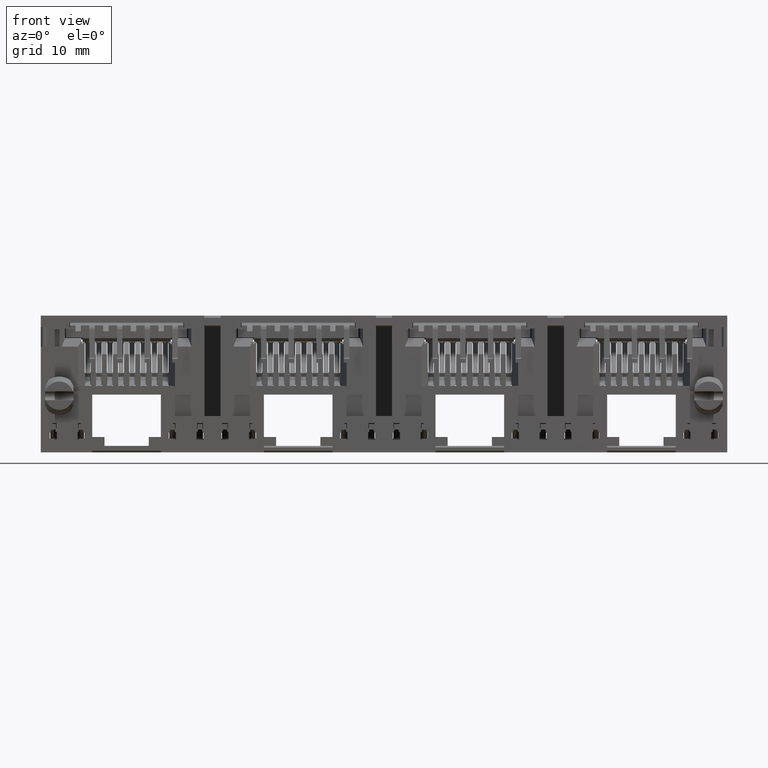
[diagram: clean part render]
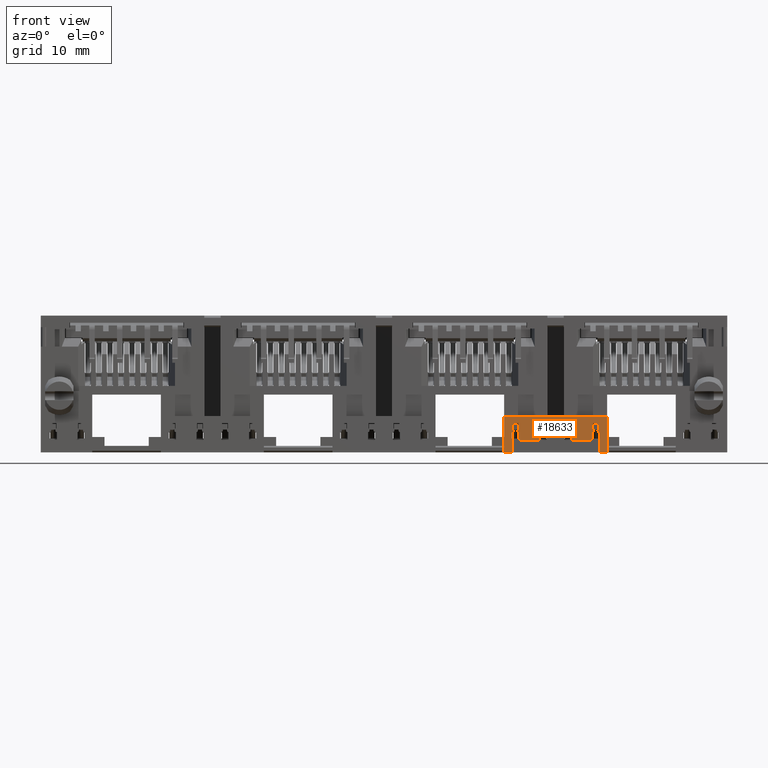
[diagram: same view with one face highlighted and labeled with its STEP entity id]
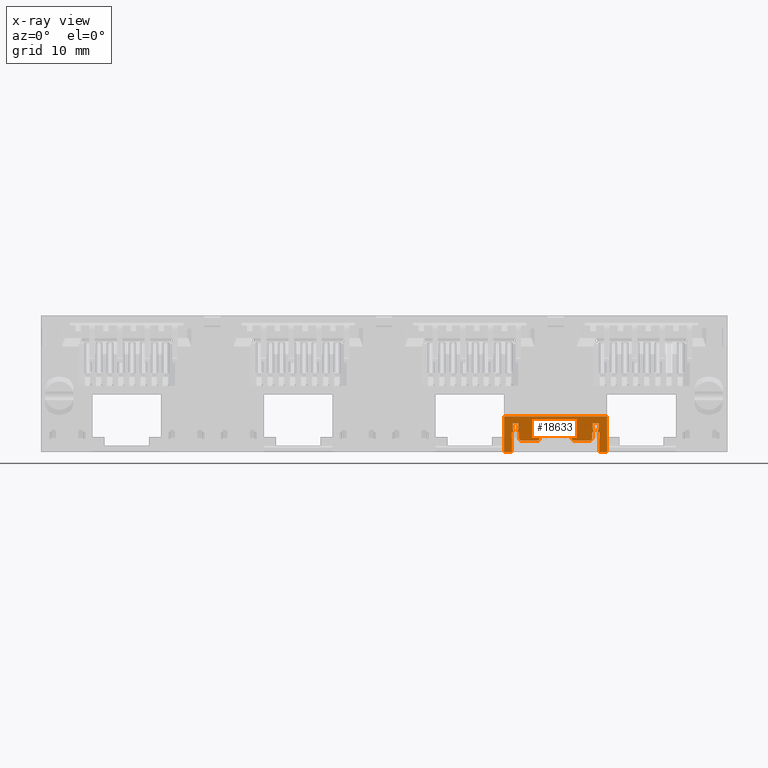
[diagram: x-ray of the same camera — body ghosted, the highlighted face saturated]
A machine part, front view. The second image highlights one B-rep face of the part: STEP entity #18633.
The next image is the same camera in x-ray: the body ghosted, the highlighted face saturated — about 0% of this face is hidden behind the body in this view.
In plain terms, the highlighted planar face has unit normal (0, 1, 0).
Its self-contained STEP definition (entity closure, byte-faithful):
#5 = CARTESIAN_POINT ( 'NONE',  ( 11.73999999999986000, -7.299999999999999800, -4.424999999999446500 ) ) ;
#51 = VERTEX_POINT ( 'NONE', #42151 ) ;
#70 = CARTESIAN_POINT ( 'NONE',  ( 14.29987121253540000, -7.299999999999998000, -4.418181119281168600 ) ) ;
#122 = B_SPLINE_CURVE_WITH_KNOTS ( 'NONE', 3,
 ( #42621, #69924, #65620, #27646 ),
 .UNSPECIFIED., .F., .F.,
 ( 4, 4 ),
 ( 0.0000000000000000000, 1.000000000000000000 ),
 .UNSPECIFIED. ) ;
#282 = CARTESIAN_POINT ( 'NONE',  ( 19.10999999999999900, -7.299999999999999800, -4.608333333333333400 ) ) ;
#555 = VERTEX_POINT ( 'NONE', #58157 ) ;
#810 = CARTESIAN_POINT ( 'NONE',  ( 19.62497640886968500, -7.300000000000000700, -4.231942493461899900 ) ) ;
#815 = CARTESIAN_POINT ( 'NONE',  ( 14.32999999999999800, -7.300000000000000700, -3.903333333333333300 ) ) ;
#946 = CARTESIAN_POINT ( 'NONE',  ( 19.70999999999999700, -7.299999999999999800, -4.080000000000000100 ) ) ;
#1155 = CARTESIAN_POINT ( 'NONE',  ( 12.25499999999999500, -7.299999999999999800, -4.230000000025500900 ) ) ;
#1161 = CARTESIAN_POINT ( 'NONE',  ( 11.80666666666666700, -7.299999999999999800, -4.080000000000000100 ) ) ;
#1225 = VERTEX_POINT ( 'NONE', #43458 ) ;
#1291 = CARTESIAN_POINT ( 'NONE',  ( 17.24155461927803800, -7.299999999999998000, -5.079397331752654800 ) ) ;
#1300 = B_SPLINE_CURVE_WITH_KNOTS ( 'NONE', 3,
 ( #66584, #40269, #51178, #61573 ),
 .UNSPECIFIED., .F., .F.,
 ( 4, 4 ),
 ( 0.0000000000000000000, 1.000000000000000000 ),
 .UNSPECIFIED. ) ;
#1408 = EDGE_CURVE ( 'NONE', #17543, #31704, #22512, .T. ) ;
#1520 = ORIENTED_EDGE ( 'NONE', *, *, #1937, .F. ) ;
#1630 = CARTESIAN_POINT ( 'NONE',  ( 12.25499999999999900, -7.300000000000000700, -4.210000000000000000 ) ) ;
#1690 = B_SPLINE_CURVE_WITH_KNOTS ( 'NONE', 3,
 ( #65242, #37693, #39855, #55962, #44590, #12850 ),
 .UNSPECIFIED., .F., .F.,
 ( 4, 2, 4 ),
 ( 0.0000000000000000000, 0.5000000000000000000, 1.000000000000000000 ),
 .UNSPECIFIED. ) ;
#1887 = CARTESIAN_POINT ( 'NONE',  ( 12.39000000000014300, -7.299999999999999800, -4.424999999999446500 ) ) ;
#1889 = EDGE_CURVE ( 'NONE', #18311, #57383, #21055, .T. ) ;
#1937 = EDGE_CURVE ( 'NONE', #66270, #32163, #36314, .T. ) ;
#2045 = ORIENTED_EDGE ( 'NONE', *, *, #24148, .F. ) ;
#2064 = ORIENTED_EDGE ( 'NONE', *, *, #48776, .F. ) ;
#2090 = DIRECTION ( 'NONE',  ( 1.000000000000000000, -0.0000000000000000000, 0.0000000000000000000 ) ) ;
#2248 = EDGE_CURVE ( 'NONE', #47143, #56397, #64339, .T. ) ;
#2477 = CARTESIAN_POINT ( 'NONE',  ( 14.35499999999999900, -7.299999999999999800, -4.169999999999999900 ) ) ;
#2508 = CARTESIAN_POINT ( 'NONE',  ( 11.02500000000000000, -7.299999999999999800, -4.049999999999999800 ) ) ;
#2717 = CARTESIAN_POINT ( 'NONE',  ( 16.70545535042160200, -7.299999999999998900, -4.252946967224617400 ) ) ;
#2721 = VERTEX_POINT ( 'NONE', #12441 ) ;
#2731 = B_SPLINE_CURVE_WITH_KNOTS ( 'NONE', 3,
 ( #34291, #33573, #1161, #39797 ),
 .UNSPECIFIED., .F., .F.,
 ( 4, 4 ),
 ( 0.0000000000000000000, 1.000000000000000000 ),
 .UNSPECIFIED. ) ;
#2791 = EDGE_CURVE ( 'NONE', #21064, #64665, #61766, .T. ) ;
#2915 = CARTESIAN_POINT ( 'NONE',  ( 14.18439733175265400, -7.299999999999998000, -5.153445380721962900 ) ) ;
#2986 = B_SPLINE_CURVE_WITH_KNOTS ( 'NONE', 3,
 ( #3451, #18864, #63149, #29731, #30638, #52012, #36110 ),
 .UNSPECIFIED., .F., .F.,
 ( 4, 1, 1, 1, 4 ),
 ( 0.0000000000000000000, 0.2500000000000000000, 0.5000000000000000000, 0.7500000000000000000, 1.000000000000000000 ),
 .UNSPECIFIED. ) ;
#3055 = CARTESIAN_POINT ( 'NONE',  ( 11.87502359113031700, -7.300000000000000700, -4.231942493461899000 ) ) ;
#3068 = CARTESIAN_POINT ( 'NONE',  ( 19.24504246644000100, -7.300000000000000700, -4.234856692046500700 ) ) ;
#3077 = CARTESIAN_POINT ( 'NONE',  ( 19.76000000000014000, -7.299999999999999800, -4.424999999999450000 ) ) ;
#3140 = CARTESIAN_POINT ( 'NONE',  ( 16.64499999999999600, -7.299999999999999800, -4.169999999999999900 ) ) ;
#3355 = CARTESIAN_POINT ( 'NONE',  ( 16.62000000000000500, -7.300000000000000700, -4.080000000000000100 ) ) ;
#3451 = CARTESIAN_POINT ( 'NONE',  ( 19.24504246644000100, -7.300000000000000700, -4.234856692046500700 ) ) ;
#3528 = CARTESIAN_POINT ( 'NONE',  ( 16.57000000000000000, -7.300000000000000700, -4.533333333333333200 ) ) ;
#3551 = CARTESIAN_POINT ( 'NONE',  ( 14.27999999999999800, -7.299999999999999800, -4.975000000000000500 ) ) ;
#3719 = CARTESIAN_POINT ( 'NONE',  ( 14.17500000000000100, -7.299999999999999800, -2.949999999999999700 ) ) ;
#4005 = CARTESIAN_POINT ( 'NONE',  ( 19.75999999999999800, -7.299999999999998900, -5.033333333333333200 ) ) ;
#4082 = EDGE_CURVE ( 'NONE', #48019, #37085, #45524, .T. ) ;
#4121 = CARTESIAN_POINT ( 'NONE',  ( 14.87999999999999700, -7.300000000000000700, -4.080000000000000100 ) ) ;
#4242 = CARTESIAN_POINT ( 'NONE',  ( 19.75999999999999800, -7.300000000000000700, -6.250000000000000000 ) ) ;
#4310 = DIRECTION ( 'NONE',  ( 1.000000000000000000, -0.0000000000000000000, 0.0000000000000000000 ) ) ;
#4400 = CARTESIAN_POINT ( 'NONE',  ( 13.58333333333333200, -7.299999999999999800, -5.174999999999999800 ) ) ;
#4426 = LINE ( 'NONE', #45999, #9503 ) ;
#4541 = B_SPLINE_CURVE_WITH_KNOTS ( 'NONE', 3,
 ( #54977, #38163, #43868, #10689 ),
 .UNSPECIFIED., .F., .F.,
 ( 4, 4 ),
 ( 0.0000000000000000000, 1.000000000000000000 ),
 .UNSPECIFIED. ) ;
#4634 = ORIENTED_EDGE ( 'NONE', *, *, #68384, .F. ) ;
#4684 = ORIENTED_EDGE ( 'NONE', *, *, #47963, .F. ) ;
#4959 = CARTESIAN_POINT ( 'NONE',  ( 19.68499999999999500, -7.299999999999999800, -4.169999999999999900 ) ) ;
#4994 = CARTESIAN_POINT ( 'NONE',  ( 14.79454464957839300, -7.299999999999998900, -4.252946967224617400 ) ) ;
#5152 = CARTESIAN_POINT ( 'NONE',  ( 17.22000000000014100, -7.300000000000000700, -4.424999999999449200 ) ) ;
#5183 = CARTESIAN_POINT ( 'NONE',  ( 14.87999999999999900, -7.300000000000000700, -3.726666666666666100 ) ) ;
#5470 = CARTESIAN_POINT ( 'NONE',  ( 11.74000000000000200, -7.299999999999999800, -5.033333333333333200 ) ) ;
#5484 = CARTESIAN_POINT ( 'NONE',  ( 17.08500000000000100, -7.300000000000000700, -4.169999999999999900 ) ) ;
#5499 = B_SPLINE_CURVE_WITH_KNOTS ( 'NONE', 3,
 ( #32097, #37333, #37555, #5152 ),
 .UNSPECIFIED., .F., .F.,
 ( 4, 4 ),
 ( 0.0000000000000000000, 1.000000000000000000 ),
 .UNSPECIFIED. ) ;
#5519 = CARTESIAN_POINT ( 'NONE',  ( 14.87999999999999700, -7.300000000000000700, -3.549999999999999400 ) ) ;
#5547 = CARTESIAN_POINT ( 'NONE',  ( 14.33767224006253100, -7.300000000000003400, -4.398536414719832700 ) ) ;
#5629 = B_SPLINE_CURVE_WITH_KNOTS ( 'NONE', 3,
 ( #68943, #69416, #36637, #9645 ),
 .UNSPECIFIED., .F., .F.,
 ( 4, 4 ),
 ( 0.0000000000000000000, 1.000000000000000000 ),
 .UNSPECIFIED. ) ;
#5774 = CARTESIAN_POINT ( 'NONE',  ( 19.18500000000000200, -7.299999999999999800, -4.169999999999999900 ) ) ;
#5841 = CARTESIAN_POINT ( 'NONE',  ( 16.62000000000000500, -7.300000000000000700, -4.080000000000000100 ) ) ;
#5886 = CARTESIAN_POINT ( 'NONE',  ( 16.64499999999999600, -7.300000000000000700, -4.080000000000000100 ) ) ;
#5893 = DIRECTION ( 'NONE',  ( -0.0000000000000000000, -0.0000000000000000000, 1.000000000000000000 ) ) ;
#6075 = VERTEX_POINT ( 'NONE', #26647 ) ;
#6338 = VECTOR ( 'NONE', #14025, 1000.000000000000000 ) ;
#6378 = ORIENTED_EDGE ( 'NONE', *, *, #40962, .F. ) ;
#6489 = EDGE_CURVE ( 'NONE', #41795, #6998, #28450, .T. ) ;
#6506 = VERTEX_POINT ( 'NONE', #5519 ) ;
#6605 = LINE ( 'NONE', #62022, #53960 ) ;
#6617 = CARTESIAN_POINT ( 'NONE',  ( 12.25438306968021600, -7.299999999999998900, -4.251162152221720400 ) ) ;
#6923 = CARTESIAN_POINT ( 'NONE',  ( 14.32999999999999500, -7.300000000000000700, -3.549999999999999400 ) ) ;
#6998 = VERTEX_POINT ( 'NONE', #8055 ) ;
#7076 = VERTEX_POINT ( 'NONE', #3068 ) ;
#7126 = CARTESIAN_POINT ( 'NONE',  ( 14.93000000000000000, -7.299999999999999800, -4.641666666666666600 ) ) ;
#7131 = B_SPLINE_CURVE_WITH_KNOTS ( 'NONE', 3,
 ( #41233, #47365, #20116, #25089 ),
 .UNSPECIFIED., .F., .F.,
 ( 4, 4 ),
 ( 0.0000000000000000000, 1.000000000000000000 ),
 .UNSPECIFIED. ) ;
#7333 = CARTESIAN_POINT ( 'NONE',  ( 19.69333333333333200, -7.299999999999999800, -4.080000000000000100 ) ) ;
#7466 = CARTESIAN_POINT ( 'NONE',  ( 16.62767224006251600, -7.300000000000004300, -4.398536414719789200 ) ) ;
#7652 = DIRECTION ( 'NONE',  ( -0.0000000000000000000, -0.0000000000000000000, 1.000000000000000000 ) ) ;
#7785 = CARTESIAN_POINT ( 'NONE',  ( 11.79000000000000300, -7.299999999999999800, -4.080000000000000100 ) ) ;
#7803 = B_SPLINE_CURVE_WITH_KNOTS ( 'NONE', 3,
 ( #13751, #24626, #36207, #52570 ),
 .UNSPECIFIED., .F., .F.,
 ( 4, 4 ),
 ( 0.0000000000000000000, 1.000000000000000000 ),
 .UNSPECIFIED. ) ;
#7819 = CARTESIAN_POINT ( 'NONE',  ( 12.38999999999999900, -7.299999999999999800, -4.791666666666667000 ) ) ;
#7845 = CARTESIAN_POINT ( 'NONE',  ( 14.87221884927902200, -7.299999999999999800, -4.398747241878513800 ) ) ;
#7924 = DIRECTION ( 'NONE',  ( 1.000000000000000000, -0.0000000000000000000, 0.0000000000000000000 ) ) ;
#8055 = CARTESIAN_POINT ( 'NONE',  ( 19.10999999999999900, -7.299999999999999800, -4.975000000000000500 ) ) ;
#8080 = CARTESIAN_POINT ( 'NONE',  ( 17.21999999999999900, -7.300000000000000700, -4.975000000000005000 ) ) ;
#8134 = CARTESIAN_POINT ( 'NONE',  ( 19.18500000000000200, -7.299999999999999800, -4.169999999999999900 ) ) ;
#8223 = CARTESIAN_POINT ( 'NONE',  ( 11.87500000000000000, -7.300000000000000700, -4.211295117878666600 ) ) ;
#8374 = CARTESIAN_POINT ( 'NONE',  ( 14.79497640886967200, -7.299999999999999800, -4.231942493462899100 ) ) ;
#8421 = CARTESIAN_POINT ( 'NONE',  ( 16.70020278292422600, -7.300000000000005200, -4.295208292058884300 ) ) ;
#8452 = ORIENTED_EDGE ( 'NONE', *, *, #24623, .F. ) ;
#8631 = ORIENTED_EDGE ( 'NONE', *, *, #43713, .F. ) ;
#8712 = CARTESIAN_POINT ( 'NONE',  ( 14.34666666666666200, -7.300000000000000700, -4.080000000000000100 ) ) ;
#8803 = CARTESIAN_POINT ( 'NONE',  ( 19.76000000000014000, -7.299999999999999800, -4.424999999999450000 ) ) ;
#8928 = CARTESIAN_POINT ( 'NONE',  ( 17.32499999999999900, -7.299999999999999800, -2.949999999999999700 ) ) ;
#8940 = CARTESIAN_POINT ( 'NONE',  ( 18.91000000000000000, -7.299999999999999800, -5.174999999999998900 ) ) ;
#8978 = CARTESIAN_POINT ( 'NONE',  ( 19.75999999999999800, -7.300000000000000700, -6.250000000000000000 ) ) ;
#9058 = ORIENTED_EDGE ( 'NONE', *, *, #42079, .F. ) ;
#9192 = VERTEX_POINT ( 'NONE', #62153 ) ;
#9288 = VERTEX_POINT ( 'NONE', #35991 ) ;
#9368 = CARTESIAN_POINT ( 'NONE',  ( 19.62500000000000000, -7.300000000000000700, -4.190647558939333300 ) ) ;
#9374 = VERTEX_POINT ( 'NONE', #69463 ) ;
#9503 = VECTOR ( 'NONE', #34592, 1000.000000000000000 ) ;
#9553 = CARTESIAN_POINT ( 'NONE',  ( 19.99833333333333500, -7.299999999999999800, -6.250000000000000000 ) ) ;
#9570 = B_SPLINE_CURVE_WITH_KNOTS ( 'NONE', 3,
 ( #35043, #7819, #67099, #1887 ),
 .UNSPECIFIED., .F., .F.,
 ( 4, 4 ),
 ( 0.0000000000000000000, 1.000000000000000000 ),
 .UNSPECIFIED. ) ;
#9645 = CARTESIAN_POINT ( 'NONE',  ( 19.70999999999999700, -7.300000000000000700, -3.549999999999999800 ) ) ;
#9664 = VECTOR ( 'NONE', #14274, 1000.000000000000000 ) ;
#9714 = VERTEX_POINT ( 'NONE', #68127 ) ;
#9806 = ORIENTED_EDGE ( 'NONE', *, *, #58314, .F. ) ;
#9838 = EDGE_CURVE ( 'NONE', #37700, #13441, #14553, .T. ) ;
#9893 = VERTEX_POINT ( 'NONE', #42691 ) ;
#9896 = CARTESIAN_POINT ( 'NONE',  ( 12.33166666666666700, -7.299999999999999800, -4.080000000000000100 ) ) ;
#9917 = ORIENTED_EDGE ( 'NONE', *, *, #34895, .F. ) ;
#9990 = CARTESIAN_POINT ( 'NONE',  ( 20.47500000000000100, -7.299999999999998900, -2.950000000000000200 ) ) ;
#10127 = VERTEX_POINT ( 'NONE', #8080 ) ;
#10138 = CARTESIAN_POINT ( 'NONE',  ( 14.41499999999999700, -7.300000000000000700, -4.169999999999999900 ) ) ;
#10246 = ORIENTED_EDGE ( 'NONE', *, *, #58971, .F. ) ;
#10505 = CARTESIAN_POINT ( 'NONE',  ( 19.16000000000000000, -7.299999999999999800, -4.080000000000000100 ) ) ;
#10546 = CARTESIAN_POINT ( 'NONE',  ( 16.70500000000000200, -7.300000000000000700, -4.169999999999999900 ) ) ;
#10689 = CARTESIAN_POINT ( 'NONE',  ( 11.79000000000000300, -7.300000000000000700, -3.549999999999999800 ) ) ;
#10696 = VECTOR ( 'NONE', #32886, 1000.000000000000000 ) ;
#10992 = VERTEX_POINT ( 'NONE', #40656 ) ;
#11001 = ORIENTED_EDGE ( 'NONE', *, *, #19203, .F. ) ;
#11533 = CARTESIAN_POINT ( 'NONE',  ( 17.08438306968021400, -7.299999999999998900, -4.251162152221720400 ) ) ;
#11956 = CARTESIAN_POINT ( 'NONE',  ( 19.65848257997322800, -7.299999999999992700, -4.352265387897631400 ) ) ;
#11977 = VERTEX_POINT ( 'NONE', #24419 ) ;
#12056 = CARTESIAN_POINT ( 'NONE',  ( 17.15333333333333600, -7.300000000000000700, -4.080000000000000100 ) ) ;
#12094 = CARTESIAN_POINT ( 'NONE',  ( 19.68499999999999500, -7.299999999999999800, -4.080000000000000100 ) ) ;
#12179 = CARTESIAN_POINT ( 'NONE',  ( 18.41333333333333400, -7.299999999999999800, -5.174999999999999800 ) ) ;
#12321 = CARTESIAN_POINT ( 'NONE',  ( 19.18500000000000200, -7.299999999999999800, -4.169999999999999900 ) ) ;
#12360 = FACE_OUTER_BOUND ( 'NONE', #47078, .T. ) ;
#12441 = CARTESIAN_POINT ( 'NONE',  ( 16.62000000000000500, -7.300000000000000700, -3.550000000000000300 ) ) ;
#12468 = CARTESIAN_POINT ( 'NONE',  ( 17.14500000000000000, -7.299999999999999800, -4.169999999999999900 ) ) ;
#12561 = ORIENTED_EDGE ( 'NONE', *, *, #63087, .F. ) ;
#12850 = CARTESIAN_POINT ( 'NONE',  ( 12.39000000000000100, -7.299999999999999800, -4.975000000000001400 ) ) ;
#12886 = EDGE_CURVE ( 'NONE', #66041, #62112, #17112, .T. ) ;
#12965 = ORIENTED_EDGE ( 'NONE', *, *, #55295, .T. ) ;
#13100 = EDGE_CURVE ( 'NONE', #10992, #15124, #61375, .T. ) ;
#13193 = ORIENTED_EDGE ( 'NONE', *, *, #36907, .F. ) ;
#13441 = VERTEX_POINT ( 'NONE', #54051 ) ;
#13749 = VECTOR ( 'NONE', #4310, 1000.000000000000000 ) ;
#13751 = CARTESIAN_POINT ( 'NONE',  ( 17.17000000000000200, -7.300000000000000700, -4.080000000000000100 ) ) ;
#14025 = DIRECTION ( 'NONE',  ( -0.0000000000000000000, -0.0000000000000000000, -1.000000000000000000 ) ) ;
#14131 = ORIENTED_EDGE ( 'NONE', *, *, #21765, .F. ) ;
#14218 = EDGE_CURVE ( 'NONE', #42968, #51, #42675, .T. ) ;
#14274 = DIRECTION ( 'NONE',  ( 1.000000000000000000, -0.0000000000000000000, 0.0000000000000000000 ) ) ;
#14402 = CARTESIAN_POINT ( 'NONE',  ( 11.81500000000000000, -7.299999999999999800, -4.080000000000000100 ) ) ;
#14553 = B_SPLINE_CURVE_WITH_KNOTS ( 'NONE', 3,
 ( #52662, #63589, #26314, #4121 ),
 .UNSPECIFIED., .F., .F.,
 ( 4, 4 ),
 ( 0.0000000000000000000, 1.000000000000000000 ),
 .UNSPECIFIED. ) ;
#14636 = CARTESIAN_POINT ( 'NONE',  ( 12.34000000000000000, -7.300000000000000700, -3.549999999999999800 ) ) ;
#14790 = LINE ( 'NONE', #3140, #9664 ) ;
#14940 = CARTESIAN_POINT ( 'NONE',  ( 14.85499999999999700, -7.300000000000000700, -4.080000000000000100 ) ) ;
#14968 = CARTESIAN_POINT ( 'NONE',  ( 11.26333333333333700, -7.299999999999999800, -6.250000000000000000 ) ) ;
#14992 = CARTESIAN_POINT ( 'NONE',  ( 11.73999999999986000, -7.299999999999999800, -4.424999999999446500 ) ) ;
#15020 = B_SPLINE_CURVE_WITH_KNOTS ( 'NONE', 3,
 ( #40323, #61875, #7845, #52401, #19930, #4994, #43125 ),
 .UNSPECIFIED., .F., .F.,
 ( 4, 1, 1, 1, 4 ),
 ( 0.0000000000000000000, 0.2500000000000000000, 0.5000000000000000000, 0.7500000000000000000, 1.000000000000000000 ),
 .UNSPECIFIED. ) ;
#15022 = EDGE_CURVE ( 'NONE', #18322, #53710, #43169, .T. ) ;
#15124 = VERTEX_POINT ( 'NONE', #41217 ) ;
#15198 = B_SPLINE_CURVE_WITH_KNOTS ( 'NONE', 3,
 ( #42047, #9553, #49560, #32216 ),
 .UNSPECIFIED., .F., .F.,
 ( 4, 4 ),
 ( 0.0000000000000000000, 1.000000000000000000 ),
 .UNSPECIFIED. ) ;
#15210 = CARTESIAN_POINT ( 'NONE',  ( 11.74000000000000200, -7.299999999999998900, -6.250000000000000000 ) ) ;
#15288 = CARTESIAN_POINT ( 'NONE',  ( 19.62500000000000000, -7.300000000000000700, -4.211295117878666600 ) ) ;
#15551 = VERTEX_POINT ( 'NONE', #21080 ) ;
#15564 = CARTESIAN_POINT ( 'NONE',  ( 16.62000000000000500, -7.300000000000001600, -3.903333333333333800 ) ) ;
#15631 = CARTESIAN_POINT ( 'NONE',  ( 14.27999999999985700, -7.300000000000000700, -4.424999999999446500 ) ) ;
#15706 = ORIENTED_EDGE ( 'NONE', *, *, #16557, .F. ) ;
#15730 = CARTESIAN_POINT ( 'NONE',  ( 19.10999999999999900, -7.299999999999999800, -4.791666666666667000 ) ) ;
#16557 = EDGE_CURVE ( 'NONE', #57383, #37700, #41342, .T. ) ;
#16768 = VERTEX_POINT ( 'NONE', #67030 ) ;
#16935 = VERTEX_POINT ( 'NONE', #10505 ) ;
#16989 = B_SPLINE_CURVE_WITH_KNOTS ( 'NONE', 3,
 ( #57220, #18654, #8223, #34733 ),
 .UNSPECIFIED., .F., .F.,
 ( 4, 4 ),
 ( 0.0000000000000000000, 1.000000000000000000 ),
 .UNSPECIFIED. ) ;
#17047 = DIRECTION ( 'NONE',  ( 1.000000000000000000, -0.0000000000000000000, 0.0000000000000000000 ) ) ;
#17062 = ORIENTED_EDGE ( 'NONE', *, *, #66042, .F. ) ;
#17112 = B_SPLINE_CURVE_WITH_KNOTS ( 'NONE', 3,
 ( #24627, #57086, #68269, #3551 ),
 .UNSPECIFIED., .F., .F.,
 ( 4, 4 ),
 ( 0.0000000000000000000, 1.000000000000000000 ),
 .UNSPECIFIED. ) ;
#17174 = CARTESIAN_POINT ( 'NONE',  ( 19.63004402688731900, -7.300000000000001600, -4.295197145607587300 ) ) ;
#17217 = CARTESIAN_POINT ( 'NONE',  ( 17.19997506609420100, -7.299999999999998900, -4.418128369219411800 ) ) ;
#17411 = B_SPLINE_CURVE_WITH_KNOTS ( 'NONE', 3,
 ( #37467, #70021, #15564, #5841 ),
 .UNSPECIFIED., .F., .F.,
 ( 4, 4 ),
 ( 0.0000000000000000000, 1.000000000000000000 ),
 .UNSPECIFIED. ) ;
#17481 = CARTESIAN_POINT ( 'NONE',  ( 14.85499999999999700, -7.299999999999999800, -4.169999999999999900 ) ) ;
#17532 = CARTESIAN_POINT ( 'NONE',  ( 12.39000000000014300, -7.299999999999999800, -4.424999999999446500 ) ) ;
#17543 = VERTEX_POINT ( 'NONE', #50627 ) ;
#17761 = CARTESIAN_POINT ( 'NONE',  ( 19.24499999999999700, -7.300000000000000700, -4.191295117879000100 ) ) ;
#17790 = CARTESIAN_POINT ( 'NONE',  ( 14.87999999999999700, -7.300000000000000700, -3.549999999999999400 ) ) ;
#17976 = CARTESIAN_POINT ( 'NONE',  ( 12.25955416835693200, -7.299999999999992700, -4.293796047258625000 ) ) ;
#18067 = ORIENTED_EDGE ( 'NONE', *, *, #51803, .F. ) ;
#18125 = PLANE ( 'NONE',  #38037 ) ;
#18311 = VERTEX_POINT ( 'NONE', #26197 ) ;
#18322 = VERTEX_POINT ( 'NONE', #37090 ) ;
#18445 = VERTEX_POINT ( 'NONE', #10546 ) ;
#18503 = CARTESIAN_POINT ( 'NONE',  ( 17.17000000000000200, -7.300000000000000700, -3.550000000000000300 ) ) ;
#18564 = B_SPLINE_CURVE_WITH_KNOTS ( 'NONE', 3,
 ( #67052, #23859, #8712, #52058 ),
 .UNSPECIFIED., .F., .F.,
 ( 4, 4 ),
 ( 0.0000000000000000000, 1.000000000000000000 ),
 .UNSPECIFIED. ) ;
#18623 = CARTESIAN_POINT ( 'NONE',  ( 20.66399999999999800, -7.299999999999999800, -2.869440653744999500 ) ) ;
#18633 = ADVANCED_FACE ( 'NONE', ( #12360 ), #18125, .F. ) ;
#18654 = CARTESIAN_POINT ( 'NONE',  ( 11.87500000000000000, -7.300000000000000700, -4.190647558939333300 ) ) ;
#18765 = CARTESIAN_POINT ( 'NONE',  ( 11.81500000000000000, -7.299999999999999800, -3.669999999999999900 ) ) ;
#18778 = EDGE_CURVE ( 'NONE', #70346, #47143, #21283, .T. ) ;
#18804 = CARTESIAN_POINT ( 'NONE',  ( 14.79500000000000000, -7.300000000000000700, -4.211295117879333600 ) ) ;
#18864 = CARTESIAN_POINT ( 'NONE',  ( 19.24508493287999800, -7.299999999999998900, -4.256511655712047000 ) ) ;
#19203 = EDGE_CURVE ( 'NONE', #6075, #53752, #26517, .T. ) ;
#19314 = CARTESIAN_POINT ( 'NONE',  ( 16.67152546253525400, -7.299999999999991800, -4.352241286328917300 ) ) ;
#19367 = VERTEX_POINT ( 'NONE', #58507 ) ;
#19495 = CARTESIAN_POINT ( 'NONE',  ( 14.28000000000000100, -7.299999999999998900, -5.027359877559830700 ) ) ;
#19665 = VERTEX_POINT ( 'NONE', #29545 ) ;
#19930 = CARTESIAN_POINT ( 'NONE',  ( 14.80004402688758200, -7.299999999999999800, -4.295197145608298700 ) ) ;
#20116 = CARTESIAN_POINT ( 'NONE',  ( 19.17666666666666900, -7.299999999999999800, -4.080000000000000100 ) ) ;
#20480 = EDGE_CURVE ( 'NONE', #2721, #32973, #17411, .T. ) ;
#20486 = ORIENTED_EDGE ( 'NONE', *, *, #36728, .F. ) ;
#20839 = VERTEX_POINT ( 'NONE', #35229 ) ;
#20940 = B_SPLINE_CURVE_WITH_KNOTS ( 'NONE', 3,
 ( #70383, #64653, #5183, #58952 ),
 .UNSPECIFIED., .F., .F.,
 ( 4, 4 ),
 ( 0.0000000000000000000, 1.000000000000000000 ),
 .UNSPECIFIED. ) ;
#20974 = CARTESIAN_POINT ( 'NONE',  ( 19.10999999999986100, -7.299999999999999800, -4.424999999999447400 ) ) ;
#21055 = LINE ( 'NONE', #46018, #41453 ) ;
#21064 = VERTEX_POINT ( 'NONE', #64360 ) ;
#21080 = CARTESIAN_POINT ( 'NONE',  ( 14.32999999999999500, -7.300000000000000700, -4.080000000000000100 ) ) ;
#21283 = B_SPLINE_CURVE_WITH_KNOTS ( 'NONE', 3,
 ( #57677, #47009, #64292, #37233 ),
 .UNSPECIFIED., .F., .F.,
 ( 4, 4 ),
 ( 0.0000000000000000000, 1.000000000000000000 ),
 .UNSPECIFIED. ) ;
#21343 = CARTESIAN_POINT ( 'NONE',  ( 11.02500000000000000, -7.299999999999998900, -2.949999999999999700 ) ) ;
#21765 = EDGE_CURVE ( 'NONE', #9288, #67861, #33380, .T. ) ;
#21881 = CARTESIAN_POINT ( 'NONE',  ( 11.79000000000000300, -7.300000000000000700, -3.549999999999999800 ) ) ;
#22042 = LINE ( 'NONE', #4959, #62842 ) ;
#22074 = CARTESIAN_POINT ( 'NONE',  ( 13.08666666666666400, -7.300000000000000700, -5.174999999999999800 ) ) ;
#22312 = ORIENTED_EDGE ( 'NONE', *, *, #68274, .F. ) ;
#22329 = CARTESIAN_POINT ( 'NONE',  ( 14.32999999999999500, -7.300000000000000700, -4.080000000000000100 ) ) ;
#22351 = CARTESIAN_POINT ( 'NONE',  ( 17.22000000000000200, -7.299999999999998900, -5.027359877559828900 ) ) ;
#22359 = VERTEX_POINT ( 'NONE', #14636 ) ;
#22374 = ORIENTED_EDGE ( 'NONE', *, *, #40490, .F. ) ;
#22512 = B_SPLINE_CURVE_WITH_KNOTS ( 'NONE', 3,
 ( #60729, #12179, #28245, #54820 ),
 .UNSPECIFIED., .F., .F.,
 ( 4, 4 ),
 ( 0.0000000000000000000, 1.000000000000000000 ),
 .UNSPECIFIED. ) ;
#22834 = VERTEX_POINT ( 'NONE', #27205 ) ;
#22842 = CARTESIAN_POINT ( 'NONE',  ( 17.16178123953667600, -7.299999999999999800, -4.398504272840308500 ) ) ;
#23096 = ORIENTED_EDGE ( 'NONE', *, *, #45668, .F. ) ;
#23205 = EDGE_CURVE ( 'NONE', #41183, #37394, #54701, .T. ) ;
#23330 = ORIENTED_EDGE ( 'NONE', *, *, #14218, .F. ) ;
#23423 = CARTESIAN_POINT ( 'NONE',  ( 14.51333333333333000, -7.300000000000000700, -3.549999999999999800 ) ) ;
#23505 = CARTESIAN_POINT ( 'NONE',  ( 14.79500000000000000, -7.300000000000000700, -4.190647558939666300 ) ) ;
#23634 = CARTESIAN_POINT ( 'NONE',  ( 19.24499999999999700, -7.300000000000000700, -4.212590235757999400 ) ) ;
#23784 = EDGE_CURVE ( 'NONE', #16768, #66041, #50812, .T. ) ;
#23859 = CARTESIAN_POINT ( 'NONE',  ( 14.33833333333332900, -7.300000000000000700, -4.080000000000000100 ) ) ;
#24148 = EDGE_CURVE ( 'NONE', #62286, #19367, #52683, .T. ) ;
#24400 = CARTESIAN_POINT ( 'NONE',  ( 17.14500000000000000, -7.299999999999999800, -4.169999999999999900 ) ) ;
#24419 = CARTESIAN_POINT ( 'NONE',  ( 11.79000000000000300, -7.299999999999999800, -4.080000000000000100 ) ) ;
#24443 = CARTESIAN_POINT ( 'NONE',  ( 19.18500000000000200, -7.299999999999999800, -3.669999999999999900 ) ) ;
#24583 = CARTESIAN_POINT ( 'NONE',  ( 19.10999999999999900, -7.299999999999998900, -5.027359877559829800 ) ) ;
#24623 = EDGE_CURVE ( 'NONE', #555, #58456, #34210, .T. ) ;
#24626 = CARTESIAN_POINT ( 'NONE',  ( 17.17000000000000200, -7.300000000000000700, -3.903333333333333800 ) ) ;
#24627 = CARTESIAN_POINT ( 'NONE',  ( 14.27999999999985700, -7.300000000000000700, -4.424999999999446500 ) ) ;
#25089 = CARTESIAN_POINT ( 'NONE',  ( 19.18500000000000200, -7.299999999999999800, -4.080000000000000100 ) ) ;
#25090 = CARTESIAN_POINT ( 'NONE',  ( 19.62500000000000000, -7.300000000000000700, -4.169999999999999900 ) ) ;
#25105 = EDGE_CURVE ( 'NONE', #19665, #54769, #29899, .T. ) ;
#25144 = ORIENTED_EDGE ( 'NONE', *, *, #2791, .F. ) ;
#25233 = CARTESIAN_POINT ( 'NONE',  ( 11.02500000000000400, -7.299999999999998900, -6.250000000000000000 ) ) ;
#25331 = CARTESIAN_POINT ( 'NONE',  ( 12.32333333333333100, -7.299999999999999800, -4.080000000000000100 ) ) ;
#25497 = VERTEX_POINT ( 'NONE', #52050 ) ;
#25571 = CARTESIAN_POINT ( 'NONE',  ( 14.41499999999999700, -7.300000000000000700, -4.169999999999999900 ) ) ;
#25682 = ORIENTED_EDGE ( 'NONE', *, *, #34989, .F. ) ;
#25857 = CARTESIAN_POINT ( 'NONE',  ( 20.47500000000000100, -7.299999999999999800, -4.050000000000000700 ) ) ;
#25864 = B_SPLINE_CURVE_WITH_KNOTS ( 'NONE', 3,
 ( #29795, #29315, #56828, #7785 ),
 .UNSPECIFIED., .F., .F.,
 ( 4, 4 ),
 ( 0.0000000000000000000, 1.000000000000000000 ),
 .UNSPECIFIED. ) ;
#26066 = CARTESIAN_POINT ( 'NONE',  ( 11.50166666666666900, -7.299999999999999800, -6.250000000000000000 ) ) ;
#26081 = ORIENTED_EDGE ( 'NONE', *, *, #52001, .F. ) ;
#26197 = CARTESIAN_POINT ( 'NONE',  ( 14.79500000000000000, -7.300000000000000700, -4.169999999999999900 ) ) ;
#26314 = CARTESIAN_POINT ( 'NONE',  ( 14.87166666666666400, -7.300000000000000700, -4.080000000000000100 ) ) ;
#26317 = ORIENTED_EDGE ( 'NONE', *, *, #27788, .F. ) ;
#26322 = ORIENTED_EDGE ( 'NONE', *, *, #59325, .F. ) ;
#26517 = B_SPLINE_CURVE_WITH_KNOTS ( 'NONE', 3,
 ( #34846, #40586, #35317, #45299 ),
 .UNSPECIFIED., .F., .F.,
 ( 4, 4 ),
 ( 0.0000000000000000000, 1.000000000000000000 ),
 .UNSPECIFIED. ) ;
#26536 = CARTESIAN_POINT ( 'NONE',  ( 11.74000000000000200, -7.299999999999998900, -6.250000000000000000 ) ) ;
#26647 = CARTESIAN_POINT ( 'NONE',  ( 19.70999999999999700, -7.300000000000000700, -3.549999999999999800 ) ) ;
#26890 = CARTESIAN_POINT ( 'NONE',  ( 14.07999999999999800, -7.299999999999999800, -5.174999999999999800 ) ) ;
#27205 = CARTESIAN_POINT ( 'NONE',  ( 12.31499999999999600, -7.299999999999999800, -4.169999999999999900 ) ) ;
#27547 = ORIENTED_EDGE ( 'NONE', *, *, #18778, .F. ) ;
#27635 = CARTESIAN_POINT ( 'NONE',  ( 16.62833333333333700, -7.300000000000001600, -4.080000000000000100 ) ) ;
#27646 = CARTESIAN_POINT ( 'NONE',  ( 16.70502359113032400, -7.300000000000000700, -4.231942493462899100 ) ) ;
#27721 = ORIENTED_EDGE ( 'NONE', *, *, #20480, .F. ) ;
#27788 = EDGE_CURVE ( 'NONE', #32973, #29643, #57190, .T. ) ;
#27791 = CARTESIAN_POINT ( 'NONE',  ( 19.76000000000014000, -7.299999999999999800, -4.424999999999450000 ) ) ;
#27844 = B_SPLINE_CURVE_WITH_KNOTS ( 'NONE', 3,
 ( #54471, #65408, #32871, #38344 ),
 .UNSPECIFIED., .F., .F.,
 ( 4, 4 ),
 ( 0.0000000000000000000, 1.000000000000000000 ),
 .UNSPECIFIED. ) ;
#28101 = CARTESIAN_POINT ( 'NONE',  ( 14.35499999999999900, -7.300000000000000700, -4.080000000000000100 ) ) ;
#28245 = CARTESIAN_POINT ( 'NONE',  ( 17.91666666666666800, -7.299999999999999800, -5.174999999999999800 ) ) ;
#28450 = B_SPLINE_CURVE_WITH_KNOTS ( 'NONE', 3,
 ( #32698, #282, #15730, #43422 ),
 .UNSPECIFIED., .F., .F.,
 ( 4, 4 ),
 ( 0.0000000000000000000, 1.000000000000000000 ),
 .UNSPECIFIED. ) ;
#28480 = CARTESIAN_POINT ( 'NONE',  ( 11.81500000000000000, -7.299999999999999800, -4.169999999999999900 ) ) ;
#28850 = CARTESIAN_POINT ( 'NONE',  ( 12.36997506609420000, -7.299999999999998900, -4.418128369219409100 ) ) ;
#29068 = ORIENTED_EDGE ( 'NONE', *, *, #37869, .F. ) ;
#29315 = CARTESIAN_POINT ( 'NONE',  ( 11.79000000000000300, -7.300000000000000700, -3.726666666666666600 ) ) ;
#29432 = CARTESIAN_POINT ( 'NONE',  ( 19.24499999999999700, -7.300000000000000700, -4.169999999999999900 ) ) ;
#29545 = CARTESIAN_POINT ( 'NONE',  ( 11.02500000000000400, -7.299999999999998900, -6.250000000000000000 ) ) ;
#29643 = VERTEX_POINT ( 'NONE', #68916 ) ;
#29731 = CARTESIAN_POINT ( 'NONE',  ( 19.21031331952241700, -7.299999999999990100, -4.353800758305605500 ) ) ;
#29779 = DIRECTION ( 'NONE',  ( 1.000000000000000000, -0.0000000000000000000, 0.0000000000000000000 ) ) ;
#29795 = CARTESIAN_POINT ( 'NONE',  ( 11.79000000000000300, -7.300000000000000700, -3.549999999999999800 ) ) ;
#29813 = CARTESIAN_POINT ( 'NONE',  ( 16.57000000000000000, -7.299999999999999800, -4.750000000000000000 ) ) ;
#29899 = B_SPLINE_CURVE_WITH_KNOTS ( 'NONE', 3,
 ( #37174, #14968, #26066, #15210 ),
 .UNSPECIFIED., .F., .F.,
 ( 4, 4 ),
 ( 0.0000000000000000000, 1.000000000000000000 ),
 .UNSPECIFIED. ) ;
#30016 = CARTESIAN_POINT ( 'NONE',  ( 19.08844538072196800, -7.299999999999999800, -5.079397331752656600 ) ) ;
#30204 = B_SPLINE_CURVE_WITH_KNOTS ( 'NONE', 3,
 ( #66582, #17761, #23634, #55650 ),
 .UNSPECIFIED., .F., .F.,
 ( 4, 4 ),
 ( 0.0000000000000000000, 1.000000000000000000 ),
 .UNSPECIFIED. ) ;
#30218 = LINE ( 'NONE', #12321, #10696 ) ;
#30262 = LINE ( 'NONE', #62120, #42117 ) ;
#30300 = ORIENTED_EDGE ( 'NONE', *, *, #63688, .F. ) ;
#30356 = CARTESIAN_POINT ( 'NONE',  ( 14.13235987755983000, -7.299999999999998900, -5.175000000000001600 ) ) ;
#30638 = CARTESIAN_POINT ( 'NONE',  ( 19.16680097832797700, -7.300000000000008700, -4.399027914198790700 ) ) ;
#30734 = VERTEX_POINT ( 'NONE', #29432 ) ;
#30738 = EDGE_CURVE ( 'NONE', #62112, #42968, #68496, .T. ) ;
#31201 = EDGE_CURVE ( 'NONE', #45326, #30734, #30218, .T. ) ;
#31288 = VERTEX_POINT ( 'NONE', #62066 ) ;
#31472 = CARTESIAN_POINT ( 'NONE',  ( 11.87502359113031700, -7.300000000000000700, -4.231942493461899000 ) ) ;
#31704 = VERTEX_POINT ( 'NONE', #62240 ) ;
#31768 = CARTESIAN_POINT ( 'NONE',  ( 16.57000000000000000, -7.299999999999999800, -4.750000000000000000 ) ) ;
#32097 = CARTESIAN_POINT ( 'NONE',  ( 17.21999999999999900, -7.300000000000000700, -4.975000000000005000 ) ) ;
#32163 = VERTEX_POINT ( 'NONE', #28480 ) ;
#32216 = CARTESIAN_POINT ( 'NONE',  ( 20.47500000000000100, -7.300000000000000700, -6.250000000000000000 ) ) ;
#32347 = CARTESIAN_POINT ( 'NONE',  ( 12.34000000000000000, -7.299999999999999800, -4.080000000000000100 ) ) ;
#32604 = CARTESIAN_POINT ( 'NONE',  ( 14.79497640886967200, -7.299999999999999800, -4.231942493462899100 ) ) ;
#32698 = CARTESIAN_POINT ( 'NONE',  ( 19.10999999999986100, -7.299999999999999800, -4.424999999999447400 ) ) ;
#32795 = CARTESIAN_POINT ( 'NONE',  ( 17.22000000000014100, -7.300000000000000700, -4.424999999999449200 ) ) ;
#32871 = CARTESIAN_POINT ( 'NONE',  ( 12.34000000000000000, -7.300000000000000700, -3.726666666666666600 ) ) ;
#32886 = DIRECTION ( 'NONE',  ( 1.000000000000000000, -0.0000000000000000000, 0.0000000000000000000 ) ) ;
#32973 = VERTEX_POINT ( 'NONE', #3355 ) ;
#33203 = CARTESIAN_POINT ( 'NONE',  ( 19.70221884927882200, -7.300000000000003400, -4.398747241878369100 ) ) ;
#33380 = B_SPLINE_CURVE_WITH_KNOTS ( 'NONE', 3,
 ( #51224, #7126, #56649, #45282 ),
 .UNSPECIFIED., .F., .F.,
 ( 4, 4 ),
 ( 0.0000000000000000000, 1.000000000000000000 ),
 .UNSPECIFIED. ) ;
#33573 = CARTESIAN_POINT ( 'NONE',  ( 11.79833333333333400, -7.299999999999999800, -4.080000000000000100 ) ) ;
#33911 = ORIENTED_EDGE ( 'NONE', *, *, #6489, .F. ) ;
#34210 = B_SPLINE_CURVE_WITH_KNOTS ( 'NONE', 3,
 ( #35257, #3528, #46198, #29813 ),
 .UNSPECIFIED., .F., .F.,
 ( 4, 4 ),
 ( 0.0000000000000000000, 1.000000000000000000 ),
 .UNSPECIFIED. ) ;
#34291 = CARTESIAN_POINT ( 'NONE',  ( 11.79000000000000300, -7.299999999999999800, -4.080000000000000100 ) ) ;
#34423 = ORIENTED_EDGE ( 'NONE', *, *, #23784, .F. ) ;
#34592 = DIRECTION ( 'NONE',  ( -6.938893903907228400E-015, -0.0000000000000000000, -1.000000000000000000 ) ) ;
#34733 = CARTESIAN_POINT ( 'NONE',  ( 11.87502359113031700, -7.300000000000000700, -4.231942493461899000 ) ) ;
#34846 = CARTESIAN_POINT ( 'NONE',  ( 19.70999999999999700, -7.300000000000000700, -3.549999999999999800 ) ) ;
#34895 = EDGE_CURVE ( 'NONE', #30734, #7076, #30204, .T. ) ;
#34989 = EDGE_CURVE ( 'NONE', #44929, #11977, #25864, .T. ) ;
#35036 = VERTEX_POINT ( 'NONE', #46847 ) ;
#35043 = CARTESIAN_POINT ( 'NONE',  ( 12.39000000000000100, -7.299999999999999800, -4.975000000000001400 ) ) ;
#35102 = CARTESIAN_POINT ( 'NONE',  ( 12.31499999999999600, -7.299999999999999800, -4.169999999999999900 ) ) ;
#35229 = CARTESIAN_POINT ( 'NONE',  ( 12.25499999999999900, -7.300000000000000700, -4.169999999999999900 ) ) ;
#35234 = CARTESIAN_POINT ( 'NONE',  ( 19.01439733175265100, -7.299999999999998000, -5.153445380721962000 ) ) ;
#35257 = CARTESIAN_POINT ( 'NONE',  ( 16.56999999999985800, -7.299999999999999800, -4.424999999999446500 ) ) ;
#35317 = CARTESIAN_POINT ( 'NONE',  ( 19.34333333333333400, -7.300000000000000700, -3.549999999999999800 ) ) ;
#35389 = CARTESIAN_POINT ( 'NONE',  ( 16.56999999999985800, -7.299999999999999800, -4.424999999999446500 ) ) ;
#35492 = CARTESIAN_POINT ( 'NONE',  ( 11.84152546253557300, -7.300000000000001600, -4.352241286328517600 ) ) ;
#35508 = ORIENTED_EDGE ( 'NONE', *, *, #30738, .F. ) ;
#35528 = VERTEX_POINT ( 'NONE', #40546 ) ;
#35565 = DIRECTION ( 'NONE',  ( 3.469446951953614200E-015, -0.0000000000000000000, -1.000000000000000000 ) ) ;
#35600 = VERTEX_POINT ( 'NONE', #4242 ) ;
#35677 = ORIENTED_EDGE ( 'NONE', *, *, #25105, .T. ) ;
#35689 = ORIENTED_EDGE ( 'NONE', *, *, #47967, .F. ) ;
#35938 = CARTESIAN_POINT ( 'NONE',  ( 11.87020278292442300, -7.300000000000002500, -4.295208292058152500 ) ) ;
#35985 = VERTEX_POINT ( 'NONE', #39962 ) ;
#35991 = CARTESIAN_POINT ( 'NONE',  ( 14.93000000000000000, -7.299999999999998900, -4.750000000000000000 ) ) ;
#36110 = CARTESIAN_POINT ( 'NONE',  ( 19.10999999999986100, -7.299999999999999800, -4.424999999999447400 ) ) ;
#36206 = CARTESIAN_POINT ( 'NONE',  ( 19.75999999999999800, -7.299999999999998900, -5.641666666666667500 ) ) ;
#36207 = CARTESIAN_POINT ( 'NONE',  ( 17.17000000000000200, -7.300000000000000700, -3.726666666666667500 ) ) ;
#36260 = CARTESIAN_POINT ( 'NONE',  ( 19.70999999999999700, -7.299999999999999800, -4.080000000000000100 ) ) ;
#36314 = LINE ( 'NONE', #18765, #37168 ) ;
#36418 = CARTESIAN_POINT ( 'NONE',  ( 11.75987121253548500, -7.299999999999998900, -4.418181119281142000 ) ) ;
#36637 = CARTESIAN_POINT ( 'NONE',  ( 19.70999999999999700, -7.300000000000000700, -3.726666666666666600 ) ) ;
#36728 = EDGE_CURVE ( 'NONE', #22359, #44929, #4541, .T. ) ;
#36907 = EDGE_CURVE ( 'NONE', #29643, #9374, #4426, .T. ) ;
#37085 = VERTEX_POINT ( 'NONE', #42166 ) ;
#37090 = CARTESIAN_POINT ( 'NONE',  ( 19.68499999999999500, -7.299999999999999800, -4.080000000000000100 ) ) ;
#37115 = ORIENTED_EDGE ( 'NONE', *, *, #52772, .F. ) ;
#37168 = VECTOR ( 'NONE', #57594, 1000.000000000000000 ) ;
#37174 = CARTESIAN_POINT ( 'NONE',  ( 11.02500000000000400, -7.299999999999998900, -6.250000000000000000 ) ) ;
#37233 = CARTESIAN_POINT ( 'NONE',  ( 17.08500000000000100, -7.300000000000000700, -4.169999999999999900 ) ) ;
#37333 = CARTESIAN_POINT ( 'NONE',  ( 17.22000000000000200, -7.299999999999999800, -4.791666666666667000 ) ) ;
#37394 = VERTEX_POINT ( 'NONE', #14992 ) ;
#37398 = VERTEX_POINT ( 'NONE', #57403 ) ;
#37467 = CARTESIAN_POINT ( 'NONE',  ( 16.62000000000000500, -7.300000000000000700, -3.550000000000000300 ) ) ;
#37555 = CARTESIAN_POINT ( 'NONE',  ( 17.22000000000000200, -7.300000000000000700, -4.608333333333333400 ) ) ;
#37693 = CARTESIAN_POINT ( 'NONE',  ( 12.53764012244016800, -7.299999999999998900, -5.174999999999998000 ) ) ;
#37700 = VERTEX_POINT ( 'NONE', #14940 ) ;
#37802 = ORIENTED_EDGE ( 'NONE', *, *, #56949, .F. ) ;
#37826 = ORIENTED_EDGE ( 'NONE', *, *, #69451, .F. ) ;
#37869 = EDGE_CURVE ( 'NONE', #13441, #6506, #20940, .T. ) ;
#37935 = EDGE_CURVE ( 'NONE', #19367, #18322, #22042, .T. ) ;
#37988 = LINE ( 'NONE', #45720, #50769 ) ;
#38037 = AXIS2_PLACEMENT_3D ( 'NONE', #18623, #55803, #61967 ) ;
#38055 = B_SPLINE_CURVE_WITH_KNOTS ( 'NONE', 3,
 ( #42512, #15288, #9368, #63626 ),
 .UNSPECIFIED., .F., .F.,
 ( 4, 4 ),
 ( 0.0000000000000000000, 1.000000000000000000 ),
 .UNSPECIFIED. ) ;
#38107 = CARTESIAN_POINT ( 'NONE',  ( 14.85499999999999700, -7.299999999999999800, -4.169999999999999900 ) ) ;
#38163 = CARTESIAN_POINT ( 'NONE',  ( 12.15666666666666800, -7.300000000000000700, -3.549999999999999800 ) ) ;
#38218 = CARTESIAN_POINT ( 'NONE',  ( 14.41020278292418800, -7.300000000000006900, -4.295208292058877200 ) ) ;
#38344 = CARTESIAN_POINT ( 'NONE',  ( 12.34000000000000000, -7.300000000000000700, -3.549999999999999800 ) ) ;
#38751 = CARTESIAN_POINT ( 'NONE',  ( 17.11788165860468800, -7.299999999999998900, -4.351481484735852900 ) ) ;
#38803 = CARTESIAN_POINT ( 'NONE',  ( 16.64499999999999600, -7.299999999999999800, -4.169999999999999900 ) ) ;
#39005 = DIRECTION ( 'NONE',  ( -0.0000000000000000000, -0.0000000000000000000, 1.000000000000000000 ) ) ;
#39147 = ORIENTED_EDGE ( 'NONE', *, *, #52166, .F. ) ;
#39496 = ORIENTED_EDGE ( 'NONE', *, *, #54433, .F. ) ;
#39518 = CARTESIAN_POINT ( 'NONE',  ( 17.17000000000000200, -7.300000000000000700, -4.080000000000000100 ) ) ;
#39620 = EDGE_CURVE ( 'NONE', #6998, #17543, #66595, .T. ) ;
#39797 = CARTESIAN_POINT ( 'NONE',  ( 11.81500000000000000, -7.299999999999999800, -4.080000000000000100 ) ) ;
#39855 = CARTESIAN_POINT ( 'NONE',  ( 12.48560266824734600, -7.299999999999999800, -5.153445380721962000 ) ) ;
#39962 = CARTESIAN_POINT ( 'NONE',  ( 19.18500000000000200, -7.299999999999999800, -4.080000000000000100 ) ) ;
#40269 = CARTESIAN_POINT ( 'NONE',  ( 16.02333333333333300, -7.299999999999999800, -4.750000000000000000 ) ) ;
#40308 = B_SPLINE_CURVE_WITH_KNOTS ( 'NONE', 3,
 ( #17532, #28850, #61089, #44994, #17976, #6617, #1155 ),
 .UNSPECIFIED., .F., .F.,
 ( 4, 1, 1, 1, 4 ),
 ( 0.0000000000000000000, 0.2500000000000000000, 0.5000000000000000000, 0.7500000000000000000, 1.000000000000000000 ),
 .UNSPECIFIED. ) ;
#40323 = CARTESIAN_POINT ( 'NONE',  ( 14.93000000000014000, -7.300000000000000700, -4.424999999999447400 ) ) ;
#40490 = EDGE_CURVE ( 'NONE', #31704, #10127, #68379, .T. ) ;
#40546 = CARTESIAN_POINT ( 'NONE',  ( 20.47500000000000100, -7.300000000000000700, -6.250000000000000000 ) ) ;
#40586 = CARTESIAN_POINT ( 'NONE',  ( 19.52666666666666400, -7.300000000000000700, -3.549999999999999800 ) ) ;
#40656 = CARTESIAN_POINT ( 'NONE',  ( 17.14500000000000000, -7.299999999999999800, -4.080000000000000100 ) ) ;
#40962 = EDGE_CURVE ( 'NONE', #22834, #31288, #61676, .T. ) ;
#41183 = VERTEX_POINT ( 'NONE', #31472 ) ;
#41217 = CARTESIAN_POINT ( 'NONE',  ( 17.17000000000000200, -7.300000000000000700, -4.080000000000000100 ) ) ;
#41233 = CARTESIAN_POINT ( 'NONE',  ( 19.16000000000000000, -7.299999999999999800, -4.080000000000000100 ) ) ;
#41269 = ORIENTED_EDGE ( 'NONE', *, *, #49019, .F. ) ;
#41342 = LINE ( 'NONE', #17481, #57432 ) ;
#41445 = CARTESIAN_POINT ( 'NONE',  ( 11.73999999999986000, -7.299999999999999800, -4.424999999999446500 ) ) ;
#41453 = VECTOR ( 'NONE', #55442, 1000.000000000000000 ) ;
#41486 = ORIENTED_EDGE ( 'NONE', *, *, #12886, .F. ) ;
#41518 = B_SPLINE_CURVE_WITH_KNOTS ( 'NONE', 3,
 ( #61721, #2717, #8421, #19314, #7466, #62435, #35389 ),
 .UNSPECIFIED., .F., .F.,
 ( 4, 1, 1, 1, 4 ),
 ( 0.0000000000000000000, 0.2500000000000000000, 0.5000000000000000000, 0.7500000000000000000, 1.000000000000000000 ),
 .UNSPECIFIED. ) ;
#41641 = CARTESIAN_POINT ( 'NONE',  ( 11.02500000000000000, -7.299999999999998900, -2.949999999999999700 ) ) ;
#41677 = ORIENTED_EDGE ( 'NONE', *, *, #9838, .F. ) ;
#41795 = VERTEX_POINT ( 'NONE', #20974 ) ;
#41852 = CARTESIAN_POINT ( 'NONE',  ( 14.07999999999999800, -7.299999999999999800, -5.174999999999999800 ) ) ;
#42009 = ORIENTED_EDGE ( 'NONE', *, *, #1889, .F. ) ;
#42047 = CARTESIAN_POINT ( 'NONE',  ( 19.75999999999999800, -7.300000000000000700, -6.250000000000000000 ) ) ;
#42079 = EDGE_CURVE ( 'NONE', #52045, #2721, #52198, .T. ) ;
#42117 = VECTOR ( 'NONE', #35565, 1000.000000000000000 ) ;
#42151 = CARTESIAN_POINT ( 'NONE',  ( 12.58999999999999100, -7.300000000000000700, -5.175000000000000700 ) ) ;
#42166 = CARTESIAN_POINT ( 'NONE',  ( 19.62497640886968500, -7.300000000000000700, -4.231942493461899900 ) ) ;
#42512 = CARTESIAN_POINT ( 'NONE',  ( 19.62497640886968500, -7.300000000000000700, -4.231942493461899900 ) ) ;
#42594 = CARTESIAN_POINT ( 'NONE',  ( 11.74000000000000200, -7.299999999999998900, -6.250000000000000000 ) ) ;
#42621 = CARTESIAN_POINT ( 'NONE',  ( 16.70500000000000200, -7.300000000000000700, -4.169999999999999900 ) ) ;
#42675 = B_SPLINE_CURVE_WITH_KNOTS ( 'NONE', 3,
 ( #41852, #4400, #22074, #48432 ),
 .UNSPECIFIED., .F., .F.,
 ( 4, 4 ),
 ( 0.0000000000000000000, 1.000000000000000000 ),
 .UNSPECIFIED. ) ;
#42691 = CARTESIAN_POINT ( 'NONE',  ( 16.70502359113032400, -7.300000000000000700, -4.231942493462899100 ) ) ;
#42968 = VERTEX_POINT ( 'NONE', #26890 ) ;
#43068 = CARTESIAN_POINT ( 'NONE',  ( 14.41502359113032100, -7.300000000000000700, -4.231942493462899100 ) ) ;
#43125 = CARTESIAN_POINT ( 'NONE',  ( 14.79497640886967200, -7.299999999999999800, -4.231942493462899100 ) ) ;
#43169 = B_SPLINE_CURVE_WITH_KNOTS ( 'NONE', 3,
 ( #12094, #7333, #61109, #946 ),
 .UNSPECIFIED., .F., .F.,
 ( 4, 4 ),
 ( 0.0000000000000000000, 1.000000000000000000 ),
 .UNSPECIFIED. ) ;
#43422 = CARTESIAN_POINT ( 'NONE',  ( 19.10999999999999900, -7.299999999999999800, -4.975000000000000500 ) ) ;
#43448 = CARTESIAN_POINT ( 'NONE',  ( 14.27999999999985700, -7.300000000000000700, -4.424999999999446500 ) ) ;
#43458 = CARTESIAN_POINT ( 'NONE',  ( 12.39000000000014300, -7.299999999999999800, -4.424999999999446500 ) ) ;
#43643 = EDGE_CURVE ( 'NONE', #9192, #1225, #9570, .T. ) ;
#43713 = EDGE_CURVE ( 'NONE', #35600, #48019, #59958, .T. ) ;
#43746 = ORIENTED_EDGE ( 'NONE', *, *, #1408, .F. ) ;
#43754 = CARTESIAN_POINT ( 'NONE',  ( 17.08499999999999700, -7.300000000000000700, -4.230000000025500000 ) ) ;
#43794 = CARTESIAN_POINT ( 'NONE',  ( 16.62000000000000500, -7.300000000000000700, -4.080000000000000100 ) ) ;
#43839 = CARTESIAN_POINT ( 'NONE',  ( 19.16000000000000000, -7.300000000000000700, -3.549999999999999800 ) ) ;
#43868 = CARTESIAN_POINT ( 'NONE',  ( 11.97333333333333400, -7.300000000000000700, -3.549999999999999800 ) ) ;
#43920 = CARTESIAN_POINT ( 'NONE',  ( 14.38152546253524400, -7.299999999999992700, -4.352241286328919000 ) ) ;
#44227 = EDGE_CURVE ( 'NONE', #35036, #41183, #16989, .T. ) ;
#44590 = CARTESIAN_POINT ( 'NONE',  ( 12.39000000000000400, -7.299999999999998900, -5.027359877559828900 ) ) ;
#44929 = VERTEX_POINT ( 'NONE', #21881 ) ;
#44994 = CARTESIAN_POINT ( 'NONE',  ( 12.28788165860469100, -7.300000000000006000, -4.351481484735846700 ) ) ;
#45282 = CARTESIAN_POINT ( 'NONE',  ( 14.93000000000014000, -7.300000000000000700, -4.424999999999447400 ) ) ;
#45299 = CARTESIAN_POINT ( 'NONE',  ( 19.16000000000000000, -7.300000000000000700, -3.549999999999999800 ) ) ;
#45326 = VERTEX_POINT ( 'NONE', #5774 ) ;
#45442 = CARTESIAN_POINT ( 'NONE',  ( 14.93000000000014000, -7.300000000000000700, -4.424999999999447400 ) ) ;
#45524 = B_SPLINE_CURVE_WITH_KNOTS ( 'NONE', 3,
 ( #27791, #65757, #33203, #11956, #17174, #66008, #810 ),
 .UNSPECIFIED., .F., .F.,
 ( 4, 1, 1, 1, 4 ),
 ( 0.0000000000000000000, 0.2500000000000000000, 0.5000000000000000000, 0.7500000000000000000, 1.000000000000000000 ),
 .UNSPECIFIED. ) ;
#45668 = EDGE_CURVE ( 'NONE', #9374, #18445, #14790, .T. ) ;
#45720 = CARTESIAN_POINT ( 'NONE',  ( 11.81500000000000000, -7.299999999999999800, -4.169999999999999900 ) ) ;
#45881 = CARTESIAN_POINT ( 'NONE',  ( 11.02500000000000000, -7.299999999999998900, -2.949999999999999700 ) ) ;
#45948 = EDGE_CURVE ( 'NONE', #64976, #22359, #27844, .T. ) ;
#45999 = CARTESIAN_POINT ( 'NONE',  ( 16.64500000000000000, -7.299999999999999800, -3.669999999999999900 ) ) ;
#46018 = CARTESIAN_POINT ( 'NONE',  ( 14.35499999999999900, -7.299999999999999800, -4.169999999999999900 ) ) ;
#46087 = B_SPLINE_CURVE_WITH_KNOTS ( 'NONE', 3,
 ( #43839, #46457, #52112, #62561 ),
 .UNSPECIFIED., .F., .F.,
 ( 4, 4 ),
 ( 0.0000000000000000000, 1.000000000000000000 ),
 .UNSPECIFIED. ) ;
#46198 = CARTESIAN_POINT ( 'NONE',  ( 16.57000000000000000, -7.299999999999999800, -4.641666666666666600 ) ) ;
#46338 = CARTESIAN_POINT ( 'NONE',  ( 16.98666666666666800, -7.300000000000000700, -3.549999999999999800 ) ) ;
#46355 = ORIENTED_EDGE ( 'NONE', *, *, #2248, .F. ) ;
#46457 = CARTESIAN_POINT ( 'NONE',  ( 19.16000000000000000, -7.300000000000000700, -3.726666666666666600 ) ) ;
#46470 = VECTOR ( 'NONE', #7652, 1000.000000000000000 ) ;
#46496 = B_SPLINE_CURVE_WITH_KNOTS ( 'NONE', 3,
 ( #68689, #8928, #3719, #41641 ),
 .UNSPECIFIED., .F., .F.,
 ( 4, 4 ),
 ( 0.0000000000000000000, 1.000000000000000000 ),
 .UNSPECIFIED. ) ;
#46847 = CARTESIAN_POINT ( 'NONE',  ( 11.87500000000000000, -7.300000000000000700, -4.169999999999999900 ) ) ;
#47009 = CARTESIAN_POINT ( 'NONE',  ( 17.08500000000000100, -7.300000000000000700, -4.210000000000000000 ) ) ;
#47078 = EDGE_LOOP ( 'NONE', ( #25682, #20486, #69863, #41269, #6378, #48744, #10246, #26322, #56079, #37802, #23330, #35508, #41486, #34423, #70131, #25144, #4684, #60387, #47505, #2064, #29068, #41677, #15706, #42009, #37826, #30300, #14131, #61095, #8452, #12561, #17062, #23096, #13193, #26317, #27721, #9058, #39147, #56839, #26081, #46355, #27547, #62521, #62751, #22374, #43746, #64603, #33911, #9806, #9917, #63768, #35689, #4634, #39496, #11001, #37115, #53028, #62090, #2045, #57455, #47928, #8631, #51216, #63518, #12965, #52842, #35677, #18067, #59541, #64410, #68341, #1520, #22312 ) ) ;
#47143 = VERTEX_POINT ( 'NONE', #5484 ) ;
#47365 = CARTESIAN_POINT ( 'NONE',  ( 19.16833333333333700, -7.299999999999999800, -4.080000000000000100 ) ) ;
#47505 = ORIENTED_EDGE ( 'NONE', *, *, #55506, .F. ) ;
#47554 = VERTEX_POINT ( 'NONE', #21343 ) ;
#47795 = VERTEX_POINT ( 'NONE', #6923 ) ;
#47928 = ORIENTED_EDGE ( 'NONE', *, *, #4082, .F. ) ;
#47963 = EDGE_CURVE ( 'NONE', #64997, #21064, #30262, .T. ) ;
#47967 = EDGE_CURVE ( 'NONE', #35985, #45326, #63195, .T. ) ;
#48019 = VERTEX_POINT ( 'NONE', #8803 ) ;
#48351 = EDGE_CURVE ( 'NONE', #32163, #35036, #37988, .T. ) ;
#48420 = EDGE_CURVE ( 'NONE', #58456, #9288, #1300, .T. ) ;
#48432 = CARTESIAN_POINT ( 'NONE',  ( 12.58999999999999100, -7.300000000000000700, -5.175000000000000700 ) ) ;
#48660 = CARTESIAN_POINT ( 'NONE',  ( 14.41502359113032100, -7.300000000000000700, -4.231942493462899100 ) ) ;
#48744 = ORIENTED_EDGE ( 'NONE', *, *, #55145, .F. ) ;
#48776 = EDGE_CURVE ( 'NONE', #6506, #47795, #61233, .T. ) ;
#49019 = EDGE_CURVE ( 'NONE', #31288, #64976, #63444, .T. ) ;
#49074 = CARTESIAN_POINT ( 'NONE',  ( 11.74000000000000200, -7.299999999999999800, -5.641666666666667500 ) ) ;
#49560 = CARTESIAN_POINT ( 'NONE',  ( 20.23666666666666800, -7.299999999999999800, -6.250000000000000000 ) ) ;
#49573 = VECTOR ( 'NONE', #56867, 1000.000000000000000 ) ;
#49600 = EDGE_CURVE ( 'NONE', #37085, #62286, #38055, .T. ) ;
#49663 = CARTESIAN_POINT ( 'NONE',  ( 17.08499999999999700, -7.300000000000000700, -4.230000000025500000 ) ) ;
#50346 = EDGE_CURVE ( 'NONE', #10127, #25497, #5499, .T. ) ;
#50595 = CARTESIAN_POINT ( 'NONE',  ( 17.42000000000000500, -7.300000000000000700, -5.175000000000000700 ) ) ;
#50605 = CARTESIAN_POINT ( 'NONE',  ( 17.17000000000000200, -7.300000000000000700, -3.550000000000000300 ) ) ;
#50606 = CARTESIAN_POINT ( 'NONE',  ( 14.32999999999999500, -7.300000000000000700, -3.549999999999999400 ) ) ;
#50627 = CARTESIAN_POINT ( 'NONE',  ( 18.91000000000000000, -7.299999999999999800, -5.174999999999998900 ) ) ;
#50769 = VECTOR ( 'NONE', #2090, 1000.000000000000000 ) ;
#50812 = B_SPLINE_CURVE_WITH_KNOTS ( 'NONE', 3,
 ( #48660, #54113, #38218, #43920, #5547, #70, #43448 ),
 .UNSPECIFIED., .F., .F.,
 ( 4, 1, 1, 1, 4 ),
 ( 0.0000000000000000000, 0.2500000000000000000, 0.5000000000000000000, 0.7500000000000000000, 1.000000000000000000 ),
 .UNSPECIFIED. ) ;
#50991 = CARTESIAN_POINT ( 'NONE',  ( 12.25499999999999900, -7.300000000000000700, -4.169999999999999900 ) ) ;
#51178 = CARTESIAN_POINT ( 'NONE',  ( 15.47666666666666800, -7.299999999999998900, -4.750000000000000000 ) ) ;
#51216 = ORIENTED_EDGE ( 'NONE', *, *, #56871, .T. ) ;
#51224 = CARTESIAN_POINT ( 'NONE',  ( 14.93000000000000000, -7.299999999999998900, -4.750000000000000000 ) ) ;
#51511 = CARTESIAN_POINT ( 'NONE',  ( 14.27999999999999800, -7.299999999999999800, -4.975000000000000500 ) ) ;
#51633 = EDGE_CURVE ( 'NONE', #35528, #37398, #56909, .T. ) ;
#51803 = EDGE_CURVE ( 'NONE', #37394, #54769, #65190, .T. ) ;
#52001 = EDGE_CURVE ( 'NONE', #56397, #10992, #65720, .T. ) ;
#52012 = CARTESIAN_POINT ( 'NONE',  ( 19.12956381063461100, -7.299999999999998900, -4.418286605390294500 ) ) ;
#52045 = VERTEX_POINT ( 'NONE', #18503 ) ;
#52050 = CARTESIAN_POINT ( 'NONE',  ( 17.22000000000014100, -7.300000000000000700, -4.424999999999449200 ) ) ;
#52058 = CARTESIAN_POINT ( 'NONE',  ( 14.35499999999999900, -7.300000000000000700, -4.080000000000000100 ) ) ;
#52112 = CARTESIAN_POINT ( 'NONE',  ( 19.16000000000000000, -7.299999999999999800, -3.903333333333333300 ) ) ;
#52166 = EDGE_CURVE ( 'NONE', #15124, #52045, #7803, .T. ) ;
#52198 = B_SPLINE_CURVE_WITH_KNOTS ( 'NONE', 3,
 ( #50605, #46338, #68637, #52473 ),
 .UNSPECIFIED., .F., .F.,
 ( 4, 4 ),
 ( 0.0000000000000000000, 1.000000000000000000 ),
 .UNSPECIFIED. ) ;
#52312 = EDGE_CURVE ( 'NONE', #64665, #16768, #67797, .T. ) ;
#52401 = CARTESIAN_POINT ( 'NONE',  ( 14.82848257997356500, -7.300000000000000700, -4.352265387898039100 ) ) ;
#52473 = CARTESIAN_POINT ( 'NONE',  ( 16.62000000000000500, -7.300000000000000700, -3.550000000000000300 ) ) ;
#52570 = CARTESIAN_POINT ( 'NONE',  ( 17.17000000000000200, -7.300000000000000700, -3.550000000000000300 ) ) ;
#52662 = CARTESIAN_POINT ( 'NONE',  ( 14.85499999999999700, -7.300000000000000700, -4.080000000000000100 ) ) ;
#52683 = LINE ( 'NONE', #8134, #13749 ) ;
#52772 = EDGE_CURVE ( 'NONE', #53710, #6075, #5629, .T. ) ;
#52842 = ORIENTED_EDGE ( 'NONE', *, *, #53272, .F. ) ;
#53026 = CARTESIAN_POINT ( 'NONE',  ( 12.31499999999999600, -7.299999999999999800, -4.080000000000000100 ) ) ;
#53028 = ORIENTED_EDGE ( 'NONE', *, *, #15022, .F. ) ;
#53272 = EDGE_CURVE ( 'NONE', #19665, #47554, #61637, .T. ) ;
#53481 = CARTESIAN_POINT ( 'NONE',  ( 14.41499999999999700, -7.300000000000000700, -4.190647558939666300 ) ) ;
#53710 = VERTEX_POINT ( 'NONE', #36260 ) ;
#53752 = VERTEX_POINT ( 'NONE', #68312 ) ;
#53960 = VECTOR ( 'NONE', #29779, 1000.000000000000000 ) ;
#54051 = CARTESIAN_POINT ( 'NONE',  ( 14.87999999999999700, -7.300000000000000700, -4.080000000000000100 ) ) ;
#54113 = CARTESIAN_POINT ( 'NONE',  ( 14.41545535042159900, -7.299999999999998000, -4.252946967224616500 ) ) ;
#54433 = EDGE_CURVE ( 'NONE', #53752, #16935, #46087, .T. ) ;
#54471 = CARTESIAN_POINT ( 'NONE',  ( 12.34000000000000000, -7.299999999999999800, -4.080000000000000100 ) ) ;
#54631 = B_SPLINE_CURVE_WITH_KNOTS ( 'NONE', 3,
 ( #32795, #17217, #22842, #38751, #54872, #11533, #43754 ),
 .UNSPECIFIED., .F., .F.,
 ( 4, 1, 1, 1, 4 ),
 ( 0.0000000000000000000, 0.2500000000000000000, 0.5000000000000000000, 0.7500000000000000000, 1.000000000000000000 ),
 .UNSPECIFIED. ) ;
#54701 = B_SPLINE_CURVE_WITH_KNOTS ( 'NONE', 3,
 ( #3055, #57533, #35938, #35492, #62767, #36418, #41445 ),
 .UNSPECIFIED., .F., .F.,
 ( 4, 1, 1, 1, 4 ),
 ( 0.0000000000000000000, 0.2500000000000000000, 0.5000000000000000000, 0.7500000000000000000, 1.000000000000000000 ),
 .UNSPECIFIED. ) ;
#54769 = VERTEX_POINT ( 'NONE', #42594 ) ;
#54820 = CARTESIAN_POINT ( 'NONE',  ( 17.42000000000000500, -7.300000000000000700, -5.175000000000000700 ) ) ;
#54849 = CARTESIAN_POINT ( 'NONE',  ( 17.36764012244017200, -7.299999999999998900, -5.174999999999998000 ) ) ;
#54872 = CARTESIAN_POINT ( 'NONE',  ( 17.08955416835693700, -7.300000000000005200, -4.293796047258626700 ) ) ;
#54977 = CARTESIAN_POINT ( 'NONE',  ( 12.34000000000000000, -7.300000000000000700, -3.549999999999999800 ) ) ;
#55145 = EDGE_CURVE ( 'NONE', #20839, #22834, #6605, .T. ) ;
#55246 = CARTESIAN_POINT ( 'NONE',  ( 12.25499999999999500, -7.299999999999999800, -4.230000000025500900 ) ) ;
#55295 = EDGE_CURVE ( 'NONE', #37398, #47554, #46496, .T. ) ;
#55442 = DIRECTION ( 'NONE',  ( 1.000000000000000000, -0.0000000000000000000, 0.0000000000000000000 ) ) ;
#55506 = EDGE_CURVE ( 'NONE', #47795, #15551, #56906, .T. ) ;
#55650 = CARTESIAN_POINT ( 'NONE',  ( 19.24504246644000100, -7.300000000000000700, -4.234856692046500700 ) ) ;
#55803 = DIRECTION ( 'NONE',  ( 0.0000000000000000000, 1.000000000000000000, 0.0000000000000000000 ) ) ;
#55872 = CARTESIAN_POINT ( 'NONE',  ( 17.16166666666666900, -7.300000000000000700, -4.080000000000000100 ) ) ;
#55962 = CARTESIAN_POINT ( 'NONE',  ( 12.41155461927803700, -7.299999999999998000, -5.079397331752654800 ) ) ;
#55974 = CARTESIAN_POINT ( 'NONE',  ( 20.47500000000000100, -7.300000000000000700, -6.250000000000000000 ) ) ;
#56079 = ORIENTED_EDGE ( 'NONE', *, *, #43643, .F. ) ;
#56153 = CARTESIAN_POINT ( 'NONE',  ( 14.27999999999999800, -7.299999999999999800, -4.975000000000000500 ) ) ;
#56397 = VERTEX_POINT ( 'NONE', #12468 ) ;
#56649 = CARTESIAN_POINT ( 'NONE',  ( 14.93000000000000000, -7.299999999999999800, -4.533333333333333200 ) ) ;
#56828 = CARTESIAN_POINT ( 'NONE',  ( 11.79000000000000300, -7.299999999999999800, -3.903333333333333300 ) ) ;
#56839 = ORIENTED_EDGE ( 'NONE', *, *, #13100, .F. ) ;
#56867 = DIRECTION ( 'NONE',  ( -0.0000000000000000000, -0.0000000000000000000, 1.000000000000000000 ) ) ;
#56871 = EDGE_CURVE ( 'NONE', #35600, #35528, #15198, .T. ) ;
#56906 = B_SPLINE_CURVE_WITH_KNOTS ( 'NONE', 3,
 ( #50606, #66993, #815, #22329 ),
 .UNSPECIFIED., .F., .F.,
 ( 4, 4 ),
 ( 0.0000000000000000000, 1.000000000000000000 ),
 .UNSPECIFIED. ) ;
#56909 = B_SPLINE_CURVE_WITH_KNOTS ( 'NONE', 3,
 ( #55974, #68598, #25857, #9990 ),
 .UNSPECIFIED., .F., .F.,
 ( 4, 4 ),
 ( 0.0000000000000000000, 1.000000000000000000 ),
 .UNSPECIFIED. ) ;
#56949 = EDGE_CURVE ( 'NONE', #51, #9192, #1690, .T. ) ;
#57086 = CARTESIAN_POINT ( 'NONE',  ( 14.27999999999999900, -7.300000000000000700, -4.608333333333333400 ) ) ;
#57190 = B_SPLINE_CURVE_WITH_KNOTS ( 'NONE', 3,
 ( #43794, #27635, #65850, #5886 ),
 .UNSPECIFIED., .F., .F.,
 ( 4, 4 ),
 ( 0.0000000000000000000, 1.000000000000000000 ),
 .UNSPECIFIED. ) ;
#57220 = CARTESIAN_POINT ( 'NONE',  ( 11.87500000000000000, -7.300000000000000700, -4.169999999999999900 ) ) ;
#57383 = VERTEX_POINT ( 'NONE', #38107 ) ;
#57403 = CARTESIAN_POINT ( 'NONE',  ( 20.47500000000000100, -7.299999999999998900, -2.950000000000000200 ) ) ;
#57432 = VECTOR ( 'NONE', #39005, 1000.000000000000000 ) ;
#57455 = ORIENTED_EDGE ( 'NONE', *, *, #49600, .F. ) ;
#57533 = CARTESIAN_POINT ( 'NONE',  ( 11.87545535042169200, -7.299999999999998900, -4.252946967223699900 ) ) ;
#57554 = CARTESIAN_POINT ( 'NONE',  ( 12.34000000000000000, -7.299999999999999800, -4.080000000000000100 ) ) ;
#57594 = DIRECTION ( 'NONE',  ( -0.0000000000000000000, -0.0000000000000000000, -1.000000000000000000 ) ) ;
#57677 = CARTESIAN_POINT ( 'NONE',  ( 17.08499999999999700, -7.300000000000000700, -4.230000000025500000 ) ) ;
#58069 = EDGE_CURVE ( 'NONE', #25497, #70346, #54631, .T. ) ;
#58157 = CARTESIAN_POINT ( 'NONE',  ( 16.56999999999985800, -7.299999999999999800, -4.424999999999446500 ) ) ;
#58314 = EDGE_CURVE ( 'NONE', #7076, #41795, #2986, .T. ) ;
#58456 = VERTEX_POINT ( 'NONE', #31768 ) ;
#58507 = CARTESIAN_POINT ( 'NONE',  ( 19.68499999999999500, -7.299999999999999800, -4.169999999999999900 ) ) ;
#58845 = VERTEX_POINT ( 'NONE', #32604 ) ;
#58952 = CARTESIAN_POINT ( 'NONE',  ( 14.87999999999999700, -7.300000000000000700, -3.549999999999999400 ) ) ;
#58971 = EDGE_CURVE ( 'NONE', #9714, #20839, #60235, .T. ) ;
#59148 = VECTOR ( 'NONE', #7924, 1000.000000000000000 ) ;
#59164 = CARTESIAN_POINT ( 'NONE',  ( 14.41499999999999700, -7.300000000000000700, -4.211295117879333600 ) ) ;
#59219 = VECTOR ( 'NONE', #17047, 1000.000000000000000 ) ;
#59325 = EDGE_CURVE ( 'NONE', #1225, #9714, #40308, .T. ) ;
#59541 = ORIENTED_EDGE ( 'NONE', *, *, #23205, .F. ) ;
#59958 = B_SPLINE_CURVE_WITH_KNOTS ( 'NONE', 3,
 ( #8978, #36206, #4005, #3077 ),
 .UNSPECIFIED., .F., .F.,
 ( 4, 4 ),
 ( 0.0000000000000000000, 1.000000000000000000 ),
 .UNSPECIFIED. ) ;
#60235 = B_SPLINE_CURVE_WITH_KNOTS ( 'NONE', 3,
 ( #55246, #1630, #67131, #50991 ),
 .UNSPECIFIED., .F., .F.,
 ( 4, 4 ),
 ( 0.0000000000000000000, 1.000000000000000000 ),
 .UNSPECIFIED. ) ;
#60290 = CARTESIAN_POINT ( 'NONE',  ( 17.21999999999999900, -7.300000000000000700, -4.975000000000005000 ) ) ;
#60387 = ORIENTED_EDGE ( 'NONE', *, *, #60469, .F. ) ;
#60469 = EDGE_CURVE ( 'NONE', #15551, #64997, #18564, .T. ) ;
#60513 = CARTESIAN_POINT ( 'NONE',  ( 17.31560266824735100, -7.299999999999999800, -5.153445380721962000 ) ) ;
#60729 = CARTESIAN_POINT ( 'NONE',  ( 18.91000000000000000, -7.299999999999999800, -5.174999999999998900 ) ) ;
#60874 = CARTESIAN_POINT ( 'NONE',  ( 14.69666666666666400, -7.300000000000000700, -3.549999999999999800 ) ) ;
#61089 = CARTESIAN_POINT ( 'NONE',  ( 12.33178123953667300, -7.299999999999995400, -4.398504272840309400 ) ) ;
#61095 = ORIENTED_EDGE ( 'NONE', *, *, #48420, .F. ) ;
#61109 = CARTESIAN_POINT ( 'NONE',  ( 19.70166666666666100, -7.299999999999999800, -4.080000000000000100 ) ) ;
#61233 = B_SPLINE_CURVE_WITH_KNOTS ( 'NONE', 3,
 ( #17790, #60874, #23423, #66861 ),
 .UNSPECIFIED., .F., .F.,
 ( 4, 4 ),
 ( 0.0000000000000000000, 1.000000000000000000 ),
 .UNSPECIFIED. ) ;
#61375 = B_SPLINE_CURVE_WITH_KNOTS ( 'NONE', 3,
 ( #66104, #12056, #55872, #39518 ),
 .UNSPECIFIED., .F., .F.,
 ( 4, 4 ),
 ( 0.0000000000000000000, 1.000000000000000000 ),
 .UNSPECIFIED. ) ;
#61429 = CARTESIAN_POINT ( 'NONE',  ( 14.79500000000000000, -7.300000000000000700, -4.169999999999999900 ) ) ;
#61573 = CARTESIAN_POINT ( 'NONE',  ( 14.93000000000000000, -7.299999999999998900, -4.750000000000000000 ) ) ;
#61637 = B_SPLINE_CURVE_WITH_KNOTS ( 'NONE', 3,
 ( #25233, #67468, #2508, #45881 ),
 .UNSPECIFIED., .F., .F.,
 ( 4, 4 ),
 ( 0.0000000000000000000, 1.000000000000000000 ),
 .UNSPECIFIED. ) ;
#61676 = LINE ( 'NONE', #35102, #46470 ) ;
#61721 = CARTESIAN_POINT ( 'NONE',  ( 16.70502359113032400, -7.300000000000000700, -4.231942493462899100 ) ) ;
#61766 = LINE ( 'NONE', #2477, #59148 ) ;
#61875 = CARTESIAN_POINT ( 'NONE',  ( 14.91012878746459200, -7.299999999999998900, -4.418181119281170400 ) ) ;
#61967 = DIRECTION ( 'NONE',  ( 0.0000000000000000000, 0.0000000000000000000, -1.000000000000000000 ) ) ;
#62022 = CARTESIAN_POINT ( 'NONE',  ( 11.81500000000000000, -7.299999999999999800, -4.169999999999999900 ) ) ;
#62038 = CARTESIAN_POINT ( 'NONE',  ( 19.10999999999999900, -7.299999999999999800, -4.975000000000000500 ) ) ;
#62066 = CARTESIAN_POINT ( 'NONE',  ( 12.31499999999999600, -7.299999999999999800, -4.080000000000000100 ) ) ;
#62090 = ORIENTED_EDGE ( 'NONE', *, *, #37935, .F. ) ;
#62112 = VERTEX_POINT ( 'NONE', #56153 ) ;
#62120 = CARTESIAN_POINT ( 'NONE',  ( 14.35499999999999700, -7.299999999999999800, -3.669999999999999900 ) ) ;
#62153 = CARTESIAN_POINT ( 'NONE',  ( 12.39000000000000100, -7.299999999999999800, -4.975000000000001400 ) ) ;
#62240 = CARTESIAN_POINT ( 'NONE',  ( 17.42000000000000500, -7.300000000000000700, -5.175000000000000700 ) ) ;
#62286 = VERTEX_POINT ( 'NONE', #25090 ) ;
#62435 = CARTESIAN_POINT ( 'NONE',  ( 16.58987121253540700, -7.299999999999998900, -4.418181119281168600 ) ) ;
#62521 = ORIENTED_EDGE ( 'NONE', *, *, #58069, .F. ) ;
#62561 = CARTESIAN_POINT ( 'NONE',  ( 19.16000000000000000, -7.299999999999999800, -4.080000000000000100 ) ) ;
#62620 = CARTESIAN_POINT ( 'NONE',  ( 14.07999999999999800, -7.299999999999999800, -5.174999999999999800 ) ) ;
#62751 = ORIENTED_EDGE ( 'NONE', *, *, #50346, .F. ) ;
#62767 = CARTESIAN_POINT ( 'NONE',  ( 11.79767224006274900, -7.299999999999998000, -4.398536414719712800 ) ) ;
#62842 = VECTOR ( 'NONE', #5893, 1000.000000000000000 ) ;
#62854 = CARTESIAN_POINT ( 'NONE',  ( 14.25844538072196600, -7.299999999999999800, -5.079397331752658400 ) ) ;
#63087 = EDGE_CURVE ( 'NONE', #9893, #555, #41518, .T. ) ;
#63149 = CARTESIAN_POINT ( 'NONE',  ( 19.23918602395416100, -7.300000000000008700, -4.298003780707298400 ) ) ;
#63195 = LINE ( 'NONE', #24443, #6338 ) ;
#63444 = B_SPLINE_CURVE_WITH_KNOTS ( 'NONE', 3,
 ( #53026, #25331, #9896, #57554 ),
 .UNSPECIFIED., .F., .F.,
 ( 4, 4 ),
 ( 0.0000000000000000000, 1.000000000000000000 ),
 .UNSPECIFIED. ) ;
#63518 = ORIENTED_EDGE ( 'NONE', *, *, #51633, .T. ) ;
#63589 = CARTESIAN_POINT ( 'NONE',  ( 14.86333333333333300, -7.300000000000000700, -4.080000000000000100 ) ) ;
#63626 = CARTESIAN_POINT ( 'NONE',  ( 19.62500000000000000, -7.300000000000000700, -4.169999999999999900 ) ) ;
#63688 = EDGE_CURVE ( 'NONE', #67861, #58845, #15020, .T. ) ;
#63768 = ORIENTED_EDGE ( 'NONE', *, *, #31201, .F. ) ;
#64292 = CARTESIAN_POINT ( 'NONE',  ( 17.08500000000000100, -7.300000000000000700, -4.190000000000000400 ) ) ;
#64339 = LINE ( 'NONE', #38803, #59219 ) ;
#64360 = CARTESIAN_POINT ( 'NONE',  ( 14.35499999999999900, -7.299999999999999800, -4.169999999999999900 ) ) ;
#64410 = ORIENTED_EDGE ( 'NONE', *, *, #44227, .F. ) ;
#64603 = ORIENTED_EDGE ( 'NONE', *, *, #39620, .F. ) ;
#64653 = CARTESIAN_POINT ( 'NONE',  ( 14.87999999999999900, -7.300000000000000700, -3.903333333333333300 ) ) ;
#64665 = VERTEX_POINT ( 'NONE', #25571 ) ;
#64976 = VERTEX_POINT ( 'NONE', #32347 ) ;
#64997 = VERTEX_POINT ( 'NONE', #28101 ) ;
#65190 = B_SPLINE_CURVE_WITH_KNOTS ( 'NONE', 3,
 ( #5, #5470, #49074, #26536 ),
 .UNSPECIFIED., .F., .F.,
 ( 4, 4 ),
 ( 0.0000000000000000000, 1.000000000000000000 ),
 .UNSPECIFIED. ) ;
#65242 = CARTESIAN_POINT ( 'NONE',  ( 12.58999999999999100, -7.300000000000000700, -5.175000000000000700 ) ) ;
#65408 = CARTESIAN_POINT ( 'NONE',  ( 12.34000000000000000, -7.299999999999999800, -3.903333333333333300 ) ) ;
#65620 = CARTESIAN_POINT ( 'NONE',  ( 16.70500000000000200, -7.300000000000000700, -4.211295117879333600 ) ) ;
#65720 = LINE ( 'NONE', #24400, #49573 ) ;
#65757 = CARTESIAN_POINT ( 'NONE',  ( 19.74012878746451000, -7.299999999999998900, -4.418181119281145500 ) ) ;
#65850 = CARTESIAN_POINT ( 'NONE',  ( 16.63666666666666700, -7.300000000000000700, -4.080000000000000100 ) ) ;
#66008 = CARTESIAN_POINT ( 'NONE',  ( 19.62454464957830100, -7.299999999999998900, -4.252946967223699900 ) ) ;
#66041 = VERTEX_POINT ( 'NONE', #15631 ) ;
#66042 = EDGE_CURVE ( 'NONE', #18445, #9893, #122, .T. ) ;
#66104 = CARTESIAN_POINT ( 'NONE',  ( 17.14500000000000000, -7.299999999999999800, -4.080000000000000100 ) ) ;
#66270 = VERTEX_POINT ( 'NONE', #14402 ) ;
#66582 = CARTESIAN_POINT ( 'NONE',  ( 19.24499999999999700, -7.300000000000000700, -4.169999999999999900 ) ) ;
#66584 = CARTESIAN_POINT ( 'NONE',  ( 16.57000000000000000, -7.299999999999999800, -4.750000000000000000 ) ) ;
#66595 = B_SPLINE_CURVE_WITH_KNOTS ( 'NONE', 3,
 ( #62038, #24583, #30016, #35234, #67533, #8940 ),
 .UNSPECIFIED., .F., .F.,
 ( 4, 2, 4 ),
 ( 0.0000000000000000000, 0.5000000000000000000, 1.000000000000000000 ),
 .UNSPECIFIED. ) ;
#66861 = CARTESIAN_POINT ( 'NONE',  ( 14.32999999999999500, -7.300000000000000700, -3.549999999999999400 ) ) ;
#66993 = CARTESIAN_POINT ( 'NONE',  ( 14.32999999999999800, -7.300000000000000700, -3.726666666666666100 ) ) ;
#67030 = CARTESIAN_POINT ( 'NONE',  ( 14.41502359113032100, -7.300000000000000700, -4.231942493462899100 ) ) ;
#67052 = CARTESIAN_POINT ( 'NONE',  ( 14.32999999999999500, -7.300000000000000700, -4.080000000000000100 ) ) ;
#67099 = CARTESIAN_POINT ( 'NONE',  ( 12.38999999999999900, -7.299999999999999800, -4.608333333333333400 ) ) ;
#67131 = CARTESIAN_POINT ( 'NONE',  ( 12.25499999999999900, -7.300000000000000700, -4.190000000000000400 ) ) ;
#67468 = CARTESIAN_POINT ( 'NONE',  ( 11.02500000000000000, -7.299999999999999800, -5.150000000000000400 ) ) ;
#67533 = CARTESIAN_POINT ( 'NONE',  ( 18.96235987755982700, -7.299999999999998900, -5.174999999999998900 ) ) ;
#67797 = B_SPLINE_CURVE_WITH_KNOTS ( 'NONE', 3,
 ( #10138, #53481, #59164, #43068 ),
 .UNSPECIFIED., .F., .F.,
 ( 4, 4 ),
 ( 0.0000000000000000000, 1.000000000000000000 ),
 .UNSPECIFIED. ) ;
#67861 = VERTEX_POINT ( 'NONE', #45442 ) ;
#68006 = B_SPLINE_CURVE_WITH_KNOTS ( 'NONE', 3,
 ( #8374, #18804, #23505, #61429 ),
 .UNSPECIFIED., .F., .F.,
 ( 4, 4 ),
 ( 0.0000000000000000000, 1.000000000000000000 ),
 .UNSPECIFIED. ) ;
#68127 = CARTESIAN_POINT ( 'NONE',  ( 12.25499999999999500, -7.299999999999999800, -4.230000000025500900 ) ) ;
#68269 = CARTESIAN_POINT ( 'NONE',  ( 14.27999999999999900, -7.299999999999999800, -4.791666666666667000 ) ) ;
#68274 = EDGE_CURVE ( 'NONE', #11977, #66270, #2731, .T. ) ;
#68312 = CARTESIAN_POINT ( 'NONE',  ( 19.16000000000000000, -7.300000000000000700, -3.549999999999999800 ) ) ;
#68341 = ORIENTED_EDGE ( 'NONE', *, *, #48351, .F. ) ;
#68379 = B_SPLINE_CURVE_WITH_KNOTS ( 'NONE', 3,
 ( #50595, #54849, #60513, #1291, #22351, #60290 ),
 .UNSPECIFIED., .F., .F.,
 ( 4, 2, 4 ),
 ( 0.0000000000000000000, 0.5000000000000000000, 1.000000000000000000 ),
 .UNSPECIFIED. ) ;
#68384 = EDGE_CURVE ( 'NONE', #16935, #35985, #7131, .T. ) ;
#68496 = B_SPLINE_CURVE_WITH_KNOTS ( 'NONE', 3,
 ( #51511, #19495, #62854, #2915, #30356, #62620 ),
 .UNSPECIFIED., .F., .F.,
 ( 4, 2, 4 ),
 ( 0.0000000000000000000, 0.5000000000000000000, 1.000000000000000000 ),
 .UNSPECIFIED. ) ;
#68598 = CARTESIAN_POINT ( 'NONE',  ( 20.47500000000000100, -7.299999999999999800, -5.150000000000001200 ) ) ;
#68637 = CARTESIAN_POINT ( 'NONE',  ( 16.80333333333333800, -7.300000000000001600, -3.549999999999999800 ) ) ;
#68689 = CARTESIAN_POINT ( 'NONE',  ( 20.47500000000000100, -7.299999999999998900, -2.950000000000000200 ) ) ;
#68916 = CARTESIAN_POINT ( 'NONE',  ( 16.64499999999999600, -7.300000000000000700, -4.080000000000000100 ) ) ;
#68943 = CARTESIAN_POINT ( 'NONE',  ( 19.70999999999999700, -7.299999999999999800, -4.080000000000000100 ) ) ;
#69416 = CARTESIAN_POINT ( 'NONE',  ( 19.70999999999999700, -7.299999999999999800, -3.903333333333333300 ) ) ;
#69451 = EDGE_CURVE ( 'NONE', #58845, #18311, #68006, .T. ) ;
#69463 = CARTESIAN_POINT ( 'NONE',  ( 16.64499999999999600, -7.299999999999999800, -4.169999999999999900 ) ) ;
#69863 = ORIENTED_EDGE ( 'NONE', *, *, #45948, .F. ) ;
#69924 = CARTESIAN_POINT ( 'NONE',  ( 16.70500000000000200, -7.300000000000000700, -4.190647558939666300 ) ) ;
#70021 = CARTESIAN_POINT ( 'NONE',  ( 16.62000000000000500, -7.300000000000001600, -3.726666666666667500 ) ) ;
#70131 = ORIENTED_EDGE ( 'NONE', *, *, #52312, .F. ) ;
#70346 = VERTEX_POINT ( 'NONE', #49663 ) ;
#70383 = CARTESIAN_POINT ( 'NONE',  ( 14.87999999999999700, -7.300000000000000700, -4.080000000000000100 ) ) ;